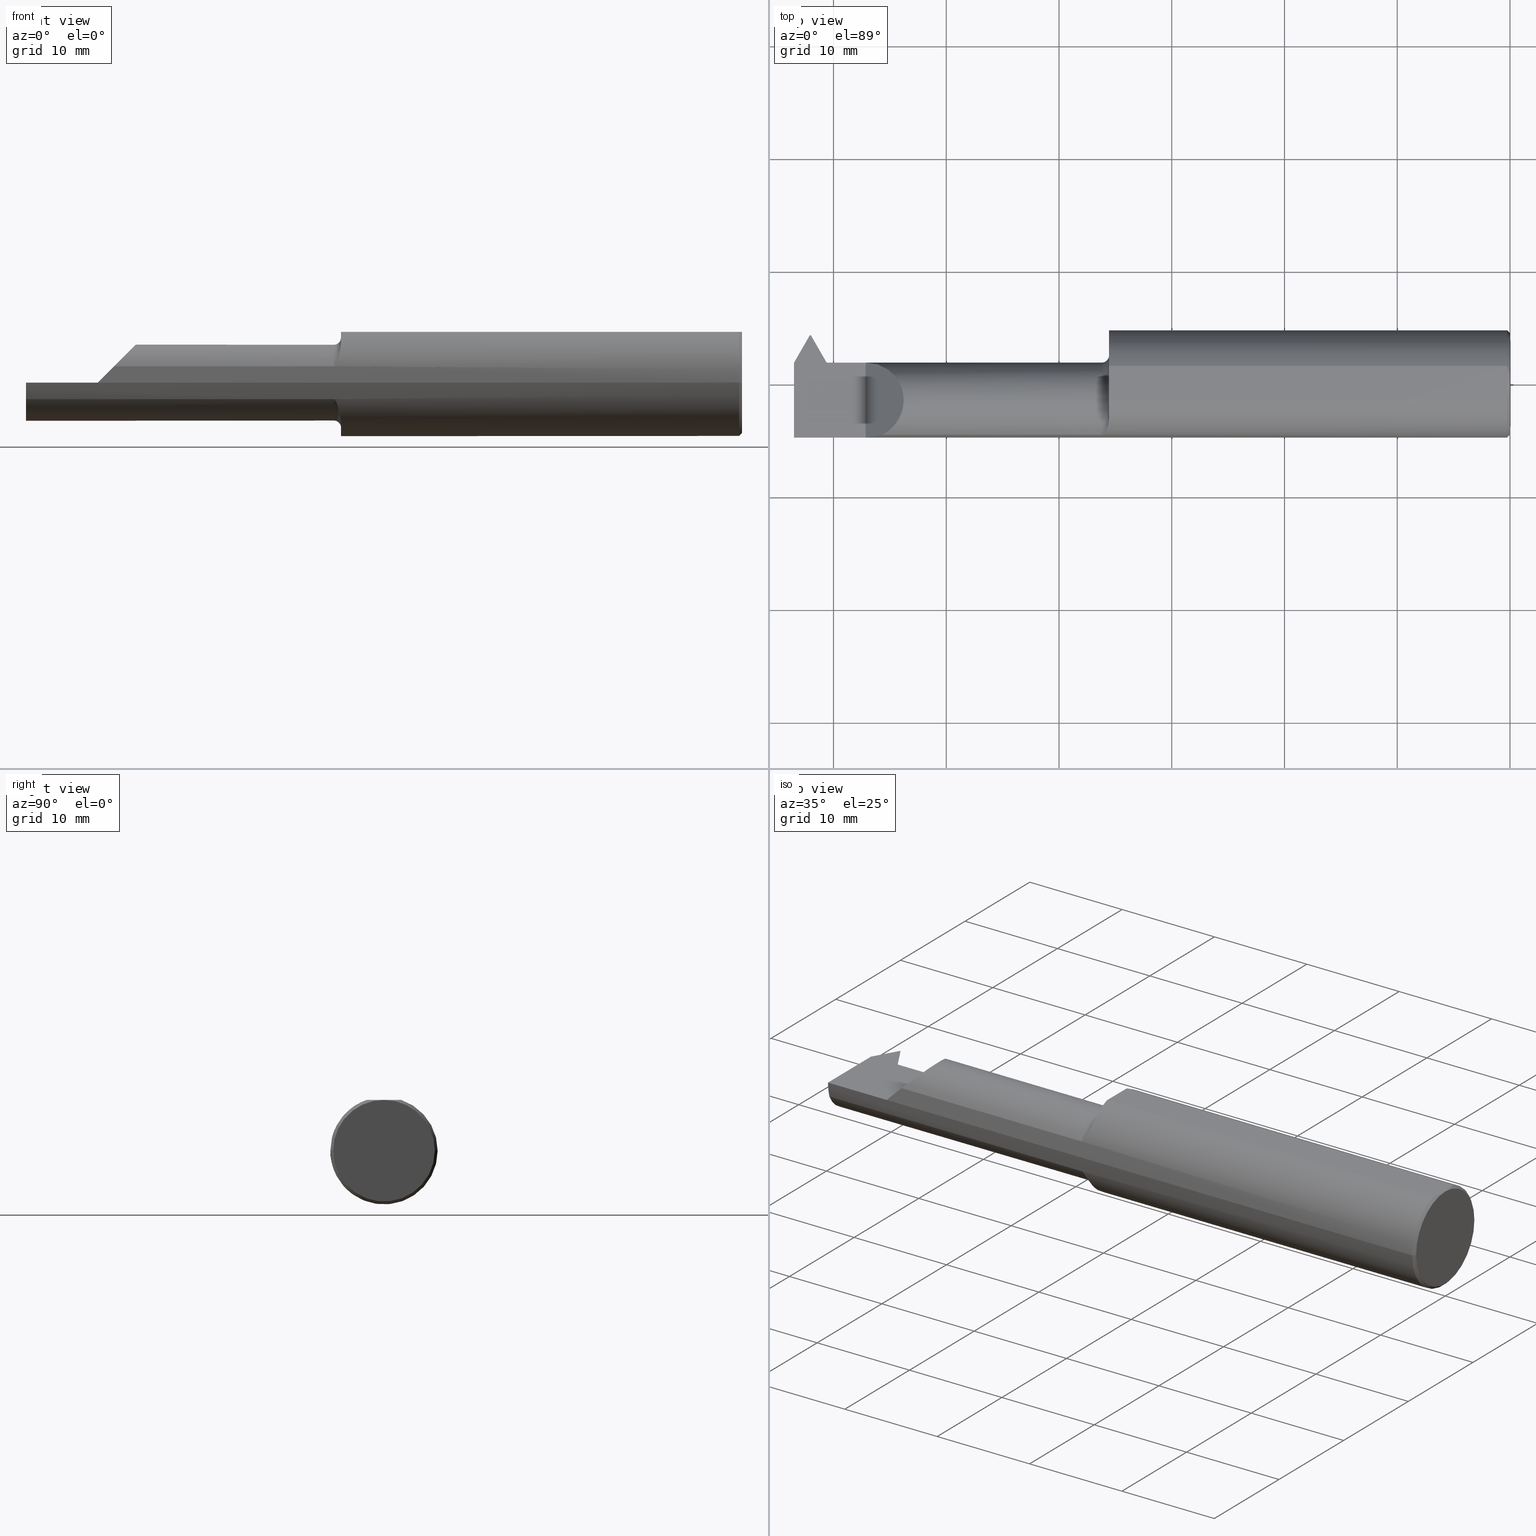
[diagram: canonical four-view strip — front | top / right | iso, engineering-drawing reading convention]
A machine part, canonical four-view strip (front | top / right | iso — engineering-drawing reading convention). The complete STEP part file that produces these views, byte-faithful:
ISO-10303-21;
HEADER;
FILE_DESCRIPTION (( 'STEP AP203' ),
    '1' );
FILE_NAME ('231894-LHTT3601000.STEP',
    '2025-01-28T18:39:22',
    ( '' ),
    ( '' ),
    'SwSTEP 2.0',
    'SolidWorks 2024',
    '' );
FILE_SCHEMA (( 'CONFIG_CONTROL_DESIGN' ));
ENDSEC;

DATA;
#1 = PERSON ( 'UNSPECIFIED', 'UNSPECIFIED', 'UNSPECIFIED', ('UNSPECIFIED'), ('UNSPECIFIED'), ('UNSPECIFIED') ) ;
#2 = ADVANCED_FACE ( 'NONE', ( #167 ), #285, .F. ) ;
#3 = DIRECTION ( 'NONE',  ( 1.000000000000000000, 1.224646799147352961E-16, -0.000000000000000000 ) ) ;
#4 = DIRECTION ( 'NONE',  ( -0.02328694095508644646, -0.3419273951315134896, -0.9394377972167885504 ) ) ;
#5 = ORIENTED_EDGE ( 'NONE', *, *, #643, .F. ) ;
#6 = APPLICATION_CONTEXT ( 'configuration controlled 3d designs of mechanical parts and assemblies' ) ;
#7 = COORDINATED_UNIVERSAL_TIME_OFFSET ( 8, 0, .BEHIND. ) ;
#8 = DIRECTION ( 'NONE',  ( 0.000000000000000000, 1.000000000000000000, 0.000000000000000000 ) ) ;
#9 = AXIS2_PLACEMENT_3D ( 'NONE', #206, #792, #816 ) ;
#10 = COORDINATED_UNIVERSAL_TIME_OFFSET ( 8, 0, .BEHIND. ) ;
#11 = ORIENTED_EDGE ( 'NONE', *, *, #860, .T. ) ;
#12 = VECTOR ( 'NONE', #333, 39.37007874015748143 ) ;
#13 = VECTOR ( 'NONE', #577, 39.37007874015748143 ) ;
#14 = DIRECTION ( 'NONE',  ( -1.224646799147352961E-16, 1.000000000000000000, 0.000000000000000000 ) ) ;
#15 = CALENDAR_DATE ( 2025, 28, 1 ) ;
#16 = EDGE_CURVE ( 'NONE', #790, #272, #692, .T. ) ;
#17 = PERSON_AND_ORGANIZATION_ROLE ( 'creator' ) ;
#18 = ORIENTED_EDGE ( 'NONE', *, *, #274, .F. ) ;
#19 = CARTESIAN_POINT ( 'NONE',  ( 1.147187889101280084E-17, 3.673940397442058882E-16, 0.000000000000000000 ) ) ;
#20 = APPROVAL_DATE_TIME ( #267, #750 ) ;
#21 = DATE_AND_TIME ( #745, #615 ) ;
#22 = EDGE_CURVE ( 'NONE', #112, #79, #493, .T. ) ;
#23 = FACE_OUTER_BOUND ( 'NONE', #411, .T. ) ;
#24 = ORIENTED_EDGE ( 'NONE', *, *, #104, .F. ) ;
#25 = CARTESIAN_POINT ( 'NONE',  ( 5.171903141325568845E-16, -0.01026980879711894036, 0.1773500000000000909 ) ) ;
#26 = EDGE_LOOP ( 'NONE', ( #488, #159, #498, #688 ) ) ;
#27 =( BOUNDED_CURVE ( )  B_SPLINE_CURVE ( 3, ( #171, #126, #443, #251 ),
 .UNSPECIFIED., .F., .F. ) 
 B_SPLINE_CURVE_WITH_KNOTS ( ( 4, 4 ),
 ( 1.570796326794896780, 1.972222054753628662 ),
 .UNSPECIFIED. ) 
 CURVE ( )  GEOMETRIC_REPRESENTATION_ITEM ( )  RATIONAL_B_SPLINE_CURVE ( ( 1.000000000000000000, 0.9866164697472173950, 0.9866164697472173950, 1.000000000000000000 ) ) 
 REPRESENTATION_ITEM ( '' )  );
#28 = CIRCLE ( 'NONE', #667, 0.1330000000000000349 ) ;
#29 = ADVANCED_FACE ( 'NONE', ( #626 ), #687, .T. ) ;
#30 = SHAPE_DEFINITION_REPRESENTATION ( #686, #797 ) ;
#31 = CARTESIAN_POINT ( 'NONE',  ( -2.300000000000000266, 0.1706499999999998851, 8.875653457662611807E-19 ) ) ;
#32 = FACE_OUTER_BOUND ( 'NONE', #701, .T. ) ;
#33 = EDGE_CURVE ( 'NONE', #168, #813, #551, .T. ) ;
#34 = CARTESIAN_POINT ( 'NONE',  ( -0.004318418993202907154, -0.04060972747957771606, 0.1773500000000000909 ) ) ;
#35 = CARTESIAN_POINT ( 'NONE',  ( -2.500000000000000000, -0.1873499999999998777, 0.000000000000000000 ) ) ;
#36 = COORDINATED_UNIVERSAL_TIME_OFFSET ( 8, 0, .BEHIND. ) ;
#37 = DIRECTION ( 'NONE',  ( -1.000000000000000000, -1.224646799147319927E-16, 0.000000000000000000 ) ) ;
#38 = ORIENTED_EDGE ( 'NONE', *, *, #803, .F. ) ;
#39 = ORIENTED_EDGE ( 'NONE', *, *, #803, .T. ) ;
#40 = PLANE ( 'NONE',  #737 ) ;
#41 = CIRCLE ( 'NONE', #152, 0.1873499999999999055 ) ;
#42 = CARTESIAN_POINT ( 'NONE',  ( -1.414343418362526750, -0.1730952584121028814, 0.07182162584506034120 ) ) ;
#43 = CARTESIAN_POINT ( 'NONE',  ( -2.442739408347421648, 0.1524514882866905841, -0.04999999999999974604 ) ) ;
#44 = VERTEX_POINT ( 'NONE', #839 ) ;
#45 = DIRECTION ( 'NONE',  ( -1.000000000000000000, -1.553500558300393421E-17, -0.000000000000000000 ) ) ;
#46 = AXIS2_PLACEMENT_3D ( 'NONE', #647, #305, #53 ) ;
#47 = CARTESIAN_POINT ( 'NONE',  ( -1.401810233260114558, -0.1445504080075222242, -0.1207082908324061121 ) ) ;
#48 = CARTESIAN_POINT ( 'NONE',  ( -0.009999999999999096417, 0.1873500000000002941, 0.000000000000000000 ) ) ;
#49 = CARTESIAN_POINT ( 'NONE',  ( -2.444500000000000117, 0.1706500000000001349, 0.000000000000000000 ) ) ;
#50 = VERTEX_POINT ( 'NONE', #483 ) ;
#51 = DIRECTION ( 'NONE',  ( 0.000000000000000000, -1.000000000000000000, 0.000000000000000000 ) ) ;
#52 = CARTESIAN_POINT ( 'NONE',  ( -1.766041125410050538, -1.019624319155451042, -0.05000000000001384587 ) ) ;
#53 = DIRECTION ( 'NONE',  ( 0.000000000000000000, -0.7071067811865430208, -0.7071067811865521247 ) ) ;
#54 = ORIENTED_EDGE ( 'NONE', *, *, #141, .T. ) ;
#55 = DIRECTION ( 'NONE',  ( -1.000000000000000000, 9.108622265535208572E-17, -0.000000000000000000 ) ) ;
#56 = ADVANCED_FACE ( 'NONE', ( #102 ), #98, .T. ) ;
#57 = AXIS2_PLACEMENT_3D ( 'NONE', #622, #89, #561 ) ;
#58 = VECTOR ( 'NONE', #67, 39.37007874015748143 ) ;
#59 = FACE_OUTER_BOUND ( 'NONE', #685, .T. ) ;
#60 = LINE ( 'NONE', #388, #490 ) ;
#61 = ORIENTED_EDGE ( 'NONE', *, *, #135, .F. ) ;
#62 = CARTESIAN_POINT ( 'NONE',  ( -2.500000000000000000, 0.07452118017992460930, 0.000000000000000000 ) ) ;
#63 = EDGE_CURVE ( 'NONE', #210, #624, #151, .T. ) ;
#64 = EDGE_CURVE ( 'NONE', #133, #624, #223, .T. ) ;
#65 = DIRECTION ( 'NONE',  ( -0.4999999999999891753, -0.8660254037844449249, -8.991635853121723481E-17 ) ) ;
#66 = EDGE_LOOP ( 'NONE', ( #833, #847, #753, #213, #681, #182, #587, #492, #320, #252 ) ) ;
#67 = DIRECTION ( 'NONE',  ( -1.000000000000000000, -1.224646799147352961E-16, 0.000000000000000000 ) ) ;
#68 = LINE ( 'NONE', #350, #811 ) ;
#69 = ORIENTED_EDGE ( 'NONE', *, *, #357, .T. ) ;
#70 = FACE_OUTER_BOUND ( 'NONE', #537, .T. ) ;
#71 = MECHANICAL_CONTEXT ( 'NONE', #828, 'mechanical' ) ;
#72 = ADVANCED_FACE ( 'NONE', ( #23 ), #829, .T. ) ;
#73 = VERTEX_POINT ( 'NONE', #158 ) ;
#74 = DIRECTION ( 'NONE',  ( 9.108622265535208572E-17, 1.000000000000000000, 1.608104540654733016E-16 ) ) ;
#75 = AXIS2_PLACEMENT_3D ( 'NONE', #265, #139, #415 ) ;
#76 = CARTESIAN_POINT ( 'NONE',  ( -2.442739408347422980, 0.06945148828669117647, -0.1329999999999999793 ) ) ;
#77 = LINE ( 'NONE', #347, #858 ) ;
#78 = LOCAL_TIME ( 10, 39, 22.00000000000000000, #535 ) ;
#79 = VERTEX_POINT ( 'NONE', #491 ) ;
#80 = CARTESIAN_POINT ( 'NONE',  ( -2.500000000000000000, -0.1873499999999998500, 0.000000000000000000 ) ) ;
#81 = DIRECTION ( 'NONE',  ( 0.7745966692414757437, 0.4472135954999608698, -0.4472135954999683638 ) ) ;
#82 = ORIENTED_EDGE ( 'NONE', *, *, #149, .F. ) ;
#83 = EDGE_CURVE ( 'NONE', #765, #268, #293, .T. ) ;
#84 = DIRECTION ( 'NONE',  ( -0.5000000000000124345, 0.000000000000000000, -0.8660254037844313801 ) ) ;
#85 = PERSON_AND_ORGANIZATION ( #1, #428 ) ;
#86 = ORIENTED_EDGE ( 'NONE', *, *, #849, .F. ) ;
#87 = EDGE_CURVE ( 'NONE', #122, #50, #354, .T. ) ;
#88 = AXIS2_PLACEMENT_3D ( 'NONE', #232, #570, #239 ) ;
#89 = DIRECTION ( 'NONE',  ( 1.000000000000000000, 1.224646799147352961E-16, -0.000000000000000000 ) ) ;
#90 = LINE ( 'NONE', #489, #823 ) ;
#91 = ORIENTED_EDGE ( 'NONE', *, *, #735, .F. ) ;
#92 = EDGE_CURVE ( 'NONE', #502, #122, #559, .T. ) ;
#93 = ORIENTED_EDGE ( 'NONE', *, *, #458, .F. ) ;
#94 = EDGE_LOOP ( 'NONE', ( #417, #494, #614, #246 ) ) ;
#95 = CC_DESIGN_PERSON_AND_ORGANIZATION_ASSIGNMENT ( #280, #284, ( #426 ) ) ;
#96 = ORIENTED_EDGE ( 'NONE', *, *, #548, .T. ) ;
#97 = TOROIDAL_SURFACE ( 'NONE', #514, 0.1580000000000003624, 0.02499999999999993894 ) ;
#98 = PLANE ( 'NONE',  #164 ) ;
#99 = VERTEX_POINT ( 'NONE', #652 ) ;
#100 = DIRECTION ( 'NONE',  ( 1.000000000000000000, 1.224646799147352961E-16, -0.000000000000000000 ) ) ;
#101 = CARTESIAN_POINT ( 'NONE',  ( -0.009999999999999073866, 0.06039039658753679596, 0.1773500000000000909 ) ) ;
#102 = FACE_OUTER_BOUND ( 'NONE', #874, .T. ) ;
#103 = CARTESIAN_POINT ( 'NONE',  ( -2.500000000000000000, 0.06039039658753648371, 0.1773500000000000909 ) ) ;
#104 = EDGE_CURVE ( 'NONE', #420, #718, #60, .T. ) ;
#105 = CARTESIAN_POINT ( 'NONE',  ( -1.399999999999979039, -0.1236042208122572206, 0.1411207813207381034 ) ) ;
#106 = LINE ( 'NONE', #376, #568 ) ;
#107 = ORIENTED_EDGE ( 'NONE', *, *, #87, .F. ) ;
#108 = CARTESIAN_POINT ( 'NONE',  ( -2.500000000000000000, 0.1873499999999999888, 0.000000000000000000 ) ) ;
#109 = APPROVAL_ROLE ( '' ) ;
#110 = DIRECTION ( 'NONE',  ( 0.8486396879976064733, -0.4899623523104046918, 0.1993679344171976064 ) ) ;
#111 = DIRECTION ( 'NONE',  ( 0.000000000000000000, 1.000000000000000000, 1.608104540654733016E-16 ) ) ;
#112 = VERTEX_POINT ( 'NONE', #518 ) ;
#113 = FACE_OUTER_BOUND ( 'NONE', #431, .T. ) ;
#114 = VECTOR ( 'NONE', #856, 39.37007874015748143 ) ;
#115 = DIRECTION ( 'NONE',  ( 0.5000000000000015543, -0.8660254037844377084, -1.041646057090106330E-14 ) ) ;
#116 = DIRECTION ( 'NONE',  ( -2.498191301712524670E-33, 1.608104540654733016E-16, -1.000000000000000000 ) ) ;
#117 = EDGE_CURVE ( 'NONE', #210, #507, #27, .T. ) ;
#118 = ORIENTED_EDGE ( 'NONE', *, *, #422, .F. ) ;
#119 = CYLINDRICAL_SURFACE ( 'NONE', #691, 0.1330000000000002292 ) ;
#120 = CARTESIAN_POINT ( 'NONE',  ( -1.423749915749442652, -0.1783697086546679744, -0.05730854678360597365 ) ) ;
#121 = CARTESIAN_POINT ( 'NONE',  ( -2.250000000000000000, -0.1873499999999998222, 0.000000000000000000 ) ) ;
#122 = VERTEX_POINT ( 'NONE', #181 ) ;
#123 = CARTESIAN_POINT ( 'NONE',  ( -2.192691453216395914, -0.1783697086546688626, 0.05730854678360348953 ) ) ;
#124 = EDGE_CURVE ( 'NONE', #524, #227, #580, .T. ) ;
#125 = CARTESIAN_POINT ( 'NONE',  ( -1.424999999999999600, -0.1783697086546689181, 0.05730854678360410015 ) ) ;
#126 = CARTESIAN_POINT ( 'NONE',  ( -2.377429102214748902, 0.07465000000000020230, -0.01791708402103020514 ) ) ;
#127 = VERTEX_POINT ( 'NONE', #43 ) ;
#128 = DIRECTION ( 'NONE',  ( 1.000000000000000000, -9.108622265535208572E-17, 0.000000000000000000 ) ) ;
#129 = MANIFOLD_SOLID_BREP ( 'Cut-Sweep1', #321 ) ;
#130 = CC_DESIGN_APPROVAL ( #750, ( #484 ) ) ;
#131 = ADVANCED_FACE ( 'NONE', ( #717 ), #522, .F. ) ;
#132 = PLANE ( 'NONE',  #709 ) ;
#133 = VERTEX_POINT ( 'NONE', #121 ) ;
#134 = DIRECTION ( 'NONE',  ( -1.253099476677463101E-16, 1.000000000000000000, 0.000000000000000000 ) ) ;
#135 = EDGE_CURVE ( 'NONE', #133, #718, #392, .T. ) ;
#136 = ORIENTED_EDGE ( 'NONE', *, *, #124, .T. ) ;
#137 = DIRECTION ( 'NONE',  ( 0.000000000000000000, 0.000000000000000000, -1.000000000000000000 ) ) ;
#138 = LINE ( 'NONE', #80, #777 ) ;
#139 = DIRECTION ( 'NONE',  ( 1.393821857617695935E-33, -8.972136187338138840E-17, 1.000000000000000000 ) ) ;
#140 = ORIENTED_EDGE ( 'NONE', *, *, #516, .F. ) ;
#141 = EDGE_CURVE ( 'NONE', #112, #424, #779, .T. ) ;
#142 = VECTOR ( 'NONE', #747, 39.37007874015748143 ) ;
#143 = B_SPLINE_CURVE_WITH_KNOTS ( 'NONE', 3,
 ( #579, #120, #641, #699, #324, #767, #636, #387, #564, #517, #510, #47, #855, #313 ),
 .UNSPECIFIED., .F., .F.,
 ( 4, 2, 2, 2, 2, 2, 4 ),
 ( 1.965724206439678457E-07, 9.384097494423624644E-05, 0.0001874853774678285443, 0.0003747741825150031382, 0.0007493517926093614875, 0.001498507012798072332, 0.002996817453175490767 ),
 .UNSPECIFIED. ) ;
#144 = LINE ( 'NONE', #330, #290 ) ;
#145 = CARTESIAN_POINT ( 'NONE',  ( -2.500000000000000000, -0.05835000000000015175, -0.1330000000000000349 ) ) ;
#146 = EDGE_LOOP ( 'NONE', ( #841, #18, #454, #821 ) ) ;
#147 = CYLINDRICAL_SURFACE ( 'NONE', #799, 0.1873499999999999055 ) ;
#148 = EDGE_LOOP ( 'NONE', ( #576, #557, #215, #54 ) ) ;
#149 = EDGE_CURVE ( 'NONE', #424, #168, #325, .T. ) ;
#150 = VECTOR ( 'NONE', #543, 39.37007874015748143 ) ;
#151 = LINE ( 'NONE', #294, #273 ) ;
#152 = AXIS2_PLACEMENT_3D ( 'NONE', #729, #654, #134 ) ;
#153 = DIRECTION ( 'NONE',  ( -0.7071067811865514585, 0.000000000000000000, -0.7071067811865435759 ) ) ;
#154 = EDGE_CURVE ( 'NONE', #309, #227, #106, .T. ) ;
#155 = PRODUCT ( '231894-LHTT3601000', '231894-LHTT3601000', '', ( #71 ) ) ;
#156 = DATE_AND_TIME ( #751, #560 ) ;
#157 = AXIS2_PLACEMENT_3D ( 'NONE', #851, #245, #511 ) ;
#158 = CARTESIAN_POINT ( 'NONE',  ( -2.441499999999999115, 0.1706500000000001904, 0.000000000000000000 ) ) ;
#159 = ORIENTED_EDGE ( 'NONE', *, *, #832, .T. ) ;
#160 = EDGE_CURVE ( 'NONE', #79, #44, #846, .T. ) ;
#161 = CARTESIAN_POINT ( 'NONE',  ( -0.006863038267947816837, -0.05065855487579175309, 0.1773500000000001187 ) ) ;
#162 = EDGE_LOOP ( 'NONE', ( #235, #549, #780, #857 ) ) ;
#163 = DIRECTION ( 'NONE',  ( 1.000000000000000000, -9.108622265535208572E-17, 0.000000000000000000 ) ) ;
#164 = AXIS2_PLACEMENT_3D ( 'NONE', #749, #358, #755 ) ;
#165 = EDGE_LOOP ( 'NONE', ( #800, #563, #266 ) ) ;
#166 = VECTOR ( 'NONE', #100, 39.37007874015748143 ) ;
#167 = FACE_OUTER_BOUND ( 'NONE', #759, .T. ) ;
#168 = VERTEX_POINT ( 'NONE', #185 ) ;
#169 = DIRECTION ( 'NONE',  ( 1.000000000000000000, -9.108622265535208572E-17, 0.000000000000000000 ) ) ;
#170 = DIRECTION ( 'NONE',  ( 0.9799247046208295897, -8.925763983057300384E-17, 0.1993679344171976342 ) ) ;
#171 = CARTESIAN_POINT ( 'NONE',  ( -2.381074374157795326, 0.07464999999999998026, 0.000000000000000000 ) ) ;
#172 = ORIENTED_EDGE ( 'NONE', *, *, #553, .F. ) ;
#173 = DIRECTION ( 'NONE',  ( -0.7071067811865343611, 0.7071067811865606734, 8.659560562355095561E-17 ) ) ;
#174 = FACE_OUTER_BOUND ( 'NONE', #756, .T. ) ;
#175 = DIRECTION ( 'NONE',  ( 1.000000000000000000, 1.224646799147352961E-16, -0.000000000000000000 ) ) ;
#176 = ORIENTED_EDGE ( 'NONE', *, *, #317, .F. ) ;
#177 = DIRECTION ( 'NONE',  ( 1.000000000000000000, 6.829619984160543070E-15, 0.000000000000000000 ) ) ;
#178 = ADVANCED_FACE ( 'NONE', ( #721 ), #331, .F. ) ;
#179 = CARTESIAN_POINT ( 'NONE',  ( -1.406810654710997532, -0.1605151270935945562, 0.09708342838367613192 ) ) ;
#180 = VECTOR ( 'NONE', #432, 39.37007874015748143 ) ;
#181 = CARTESIAN_POINT ( 'NONE',  ( -1.399999999999999911, 0.1873500000000001275, 0.000000000000000000 ) ) ;
#182 = ORIENTED_EDGE ( 'NONE', *, *, #629, .F. ) ;
#183 = DIRECTION ( 'NONE',  ( 0.000000000000000000, -0.7071067811865535679, -0.7071067811865415775 ) ) ;
#184 = CARTESIAN_POINT ( 'NONE',  ( 0.000000000000000000, 3.673940397442058882E-16, 0.000000000000000000 ) ) ;
#185 = CARTESIAN_POINT ( 'NONE',  ( -2.391947536149771292, -0.01852261497118605493, -0.1329999999999999793 ) ) ;
#186 = ADVANCED_FACE ( 'NONE', ( #319 ), #590, .F. ) ;
#187 = ORIENTED_EDGE ( 'NONE', *, *, #83, .T. ) ;
#188 = DIRECTION ( 'NONE',  ( -1.253099476677463101E-16, 1.000000000000000000, 0.000000000000000000 ) ) ;
#189 = CARTESIAN_POINT ( 'NONE',  ( -1.408844572613942470, -0.1652240583778486482, 0.08882027308812183441 ) ) ;
#190 = DIRECTION ( 'NONE',  ( 1.000000000000000000, -9.108622265535208572E-17, 0.000000000000000000 ) ) ;
#191 = ORIENTED_EDGE ( 'NONE', *, *, #629, .T. ) ;
#192 = CARTESIAN_POINT ( 'NONE',  ( -0.009999999999999073866, 3.661693929450587103E-16, 0.000000000000000000 ) ) ;
#193 = LENGTH_MEASURE_WITH_UNIT ( LENGTH_MEASURE( 0.02539999999999999897 ), #264 );
#194 = ORIENTED_EDGE ( 'NONE', *, *, #364, .T. ) ;
#195 = LINE ( 'NONE', #442, #466 ) ;
#196 = EDGE_CURVE ( 'NONE', #99, #227, #381, .T. ) ;
#197 = DIRECTION ( 'NONE',  ( -6.842104469694077398E-17, 0.3768974211598647428, 0.9262550048032363037 ) ) ;
#198 = DIRECTION ( 'NONE',  ( 1.000000000000000000, -9.108622265535208572E-17, 0.000000000000000000 ) ) ;
#199 = ORIENTED_EDGE ( 'NONE', *, *, #832, .F. ) ;
#200 = PLANE ( 'NONE',  #836 ) ;
#201 = B_SPLINE_CURVE_WITH_KNOTS ( 'NONE', 3,
 ( #244, #105, #778, #521, #787, #179, #189, #696, #42, #231, #238, #505, #446, #338, #739, #125 ),
 .UNSPECIFIED., .F., .F.,
 ( 4, 2, 2, 2, 2, 2, 2, 4 ),
 ( 0.0004765446698262938469, 0.001211022660611473043, 0.001945500651396652294, 0.002679978642181831544, 0.003047217637574418242, 0.003230837135270707688, 0.003322646884118846990, 0.003414456632966985424 ),
 .UNSPECIFIED. ) ;
#202 = DIRECTION ( 'NONE',  ( -1.224646799147352961E-16, 1.000000000000000000, 0.000000000000000000 ) ) ;
#203 = ORIENTED_EDGE ( 'NONE', *, *, #124, .F. ) ;
#204 = CARTESIAN_POINT ( 'NONE',  ( -0.009999999999999073866, 3.661693929450587103E-16, 0.000000000000000000 ) ) ;
#205 = AXIS2_PLACEMENT_3D ( 'NONE', #270, #275, #593 ) ;
#206 = CARTESIAN_POINT ( 'NONE',  ( -2.500000000000000000, -0.05835000000000006154, 0.000000000000000000 ) ) ;
#207 = CARTESIAN_POINT ( 'NONE',  ( -2.386074374157794775, 0.07464999999999998026, 0.000000000000000000 ) ) ;
#208 = AXIS2_PLACEMENT_3D ( 'NONE', #301, #110, #249 ) ;
#209 = VECTOR ( 'NONE', #183, 39.37007874015748143 ) ;
#210 = VERTEX_POINT ( 'NONE', #461 ) ;
#211 = PLANE ( 'NONE',  #221 ) ;
#212 = CC_DESIGN_PERSON_AND_ORGANIZATION_ASSIGNMENT ( #733, #414, ( #155 ) ) ;
#213 = ORIENTED_EDGE ( 'NONE', *, *, #329, .F. ) ;
#214 = CARTESIAN_POINT ( 'NONE',  ( 6.090379736355500313E-18, 0.06447738502883540446, -0.04999999999997970651 ) ) ;
#215 = ORIENTED_EDGE ( 'NONE', *, *, #369, .T. ) ;
#216 = ADVANCED_FACE ( 'NONE', ( #256 ), #506, .T. ) ;
#217 = PERSON_AND_ORGANIZATION_ROLE ( 'classification_officer' ) ;
#218 = CARTESIAN_POINT ( 'NONE',  ( -0.009999999999999073866, -0.06039039658753610901, 0.1773500000000000909 ) ) ;
#219 = LINE ( 'NONE', #363, #292 ) ;
#220 = VECTOR ( 'NONE', #351, 39.37007874015748143 ) ;
#221 = AXIS2_PLACEMENT_3D ( 'NONE', #740, #81, #84 ) ;
#222 = APPROVAL_PERSON_ORGANIZATION ( #844, #584, #109 ) ;
#223 = LINE ( 'NONE', #616, #760 ) ;
#224 = DIRECTION ( 'NONE',  ( -1.000000000000000000, 9.108622265535208572E-17, 0.000000000000000000 ) ) ;
#225 = VERTEX_POINT ( 'NONE', #48 ) ;
#226 = LINE ( 'NONE', #485, #180 ) ;
#227 = VERTEX_POINT ( 'NONE', #314 ) ;
#228 = ADVANCED_FACE ( 'NONE', ( #575 ), #533, .T. ) ;
#229 = VERTEX_POINT ( 'NONE', #602 ) ;
#230 = CARTESIAN_POINT ( 'NONE',  ( -2.192691453216395914, -0.1783697086546688626, 0.05730854678360348953 ) ) ;
#231 = CARTESIAN_POINT ( 'NONE',  ( -1.417163479082054867, -0.1755340703777918676, 0.06552011612893761383 ) ) ;
#232 = CARTESIAN_POINT ( 'NONE',  ( -1.757231382422083765, -1.014538011669857687, 0.000000000000000000 ) ) ;
#233 = CC_DESIGN_APPROVAL ( #764, ( #426 ) ) ;
#234 = ADVANCED_FACE ( 'NONE', ( #744 ), #147, .T. ) ;
#235 = ORIENTED_EDGE ( 'NONE', *, *, #33, .T. ) ;
#236 = CARTESIAN_POINT ( 'NONE',  ( -2.381074374157795326, -0.05835000000000015175, -0.1330000000000000349 ) ) ;
#237 = APPROVAL_PERSON_ORGANIZATION ( #808, #750, #604 ) ;
#238 = CARTESIAN_POINT ( 'NONE',  ( -1.418195961774019631, -0.1762973784583060366, 0.06343092843766175160 ) ) ;
#239 = DIRECTION ( 'NONE',  ( 0.5000000000000034417, -0.8660254037844365982, 0.000000000000000000 ) ) ;
#240 = ORIENTED_EDGE ( 'NONE', *, *, #819, .T. ) ;
#241 = CARTESIAN_POINT ( 'NONE',  ( -1.399999999999999911, -0.05835000000000014481, 0.000000000000000000 ) ) ;
#242 = ADVANCED_FACE ( 'NONE', ( #810 ), #211, .T. ) ;
#243 = APPROVAL_DATE_TIME ( #621, #584 ) ;
#244 = CARTESIAN_POINT ( 'NONE',  ( -1.399999999999999911, -0.1160303770345037788, 0.1470951192431537435 ) ) ;
#245 = DIRECTION ( 'NONE',  ( -1.000000000000000000, -1.224646799147319927E-16, 0.000000000000000000 ) ) ;
#246 = ORIENTED_EDGE ( 'NONE', *, *, #481, .F. ) ;
#247 = DIRECTION ( 'NONE',  ( -9.108622265535208572E-17, -1.000000000000000000, 0.000000000000000000 ) ) ;
#248 = EDGE_CURVE ( 'NONE', #665, #268, #344, .T. ) ;
#249 = DIRECTION ( 'NONE',  ( 0.4999999999999897304, 0.8660254037844445918, 0.000000000000000000 ) ) ;
#250 = CIRCLE ( 'NONE', #556, 0.1580000000000003624 ) ;
#251 = CARTESIAN_POINT ( 'NONE',  ( -2.370501519666968981, 0.06407714550917323337, -0.05196724008907808307 ) ) ;
#252 = ORIENTED_EDGE ( 'NONE', *, *, #296, .F. ) ;
#253 = LINE ( 'NONE', #303, #497 ) ;
#254 = B_SPLINE_CURVE_WITH_KNOTS ( 'NONE', 3,
 ( #391, #574, #651, #370, #630, #101 ),
 .UNSPECIFIED., .F., .F.,
 ( 4, 2, 4 ),
 ( 0.003500626357656855259, 0.004276870921898036533, 0.005053115486139217807 ),
 .UNSPECIFIED. ) ;
#255 = PLANE ( 'NONE',  #208 ) ;
#256 = FACE_OUTER_BOUND ( 'NONE', #165, .T. ) ;
#257 = ORIENTED_EDGE ( 'NONE', *, *, #160, .F. ) ;
#258 = DIRECTION ( 'NONE',  ( 1.000000000000000000, 1.224646799147352961E-16, -0.000000000000000000 ) ) ;
#259 = CARTESIAN_POINT ( 'NONE',  ( -1.907268617577931424, 1.101162049775513907, 0.000000000000000000 ) ) ;
#260 = DIRECTION ( 'NONE',  ( 1.000000000000000000, 1.224646799147352961E-16, -0.000000000000000000 ) ) ;
#261 = ADVANCED_FACE ( 'NONE', ( #865 ), #132, .T. ) ;
#262 = ORIENTED_EDGE ( 'NONE', *, *, #819, .F. ) ;
#263 = CARTESIAN_POINT ( 'NONE',  ( -2.500000000000000000, -0.2500000000000000000, 0.000000000000000000 ) ) ;
#264 =( LENGTH_UNIT ( ) NAMED_UNIT ( * ) SI_UNIT ( $, .METRE. ) );
#265 = CARTESIAN_POINT ( 'NONE',  ( -2.381074374157795326, -0.05835000000000018644, -0.1330000000000000349 ) ) ;
#266 = ORIENTED_EDGE ( 'NONE', *, *, #248, .T. ) ;
#267 = DATE_AND_TIME ( #15, #843 ) ;
#268 = VERTEX_POINT ( 'NONE', #670 ) ;
#269 = LINE ( 'NONE', #538, #761 ) ;
#270 = CARTESIAN_POINT ( 'NONE',  ( -5.098311318176956023E-16, 0.07465000000001625891, 0.000000000000000000 ) ) ;
#271 = FACE_OUTER_BOUND ( 'NONE', #723, .T. ) ;
#272 = VERTEX_POINT ( 'NONE', #207 ) ;
#273 = VECTOR ( 'NONE', #163, 39.37007874015748143 ) ;
#274 = EDGE_CURVE ( 'NONE', #420, #665, #668, .T. ) ;
#275 = DIRECTION ( 'NONE',  ( 6.692513345651035612E-15, -0.9799247046208295897, 0.1993679344171976342 ) ) ;
#276 = VECTOR ( 'NONE', #449, 39.37007874015748143 ) ;
#277 = ORIENTED_EDGE ( 'NONE', *, *, #369, .F. ) ;
#278 = CARTESIAN_POINT ( 'NONE',  ( -2.381074374157795326, -0.05835000000000015175, -0.1330000000000000349 ) ) ;
#279 = PERSON_AND_ORGANIZATION_ROLE ( 'creator' ) ;
#280 = PERSON_AND_ORGANIZATION ( #1, #428 ) ;
#281 = VERTEX_POINT ( 'NONE', #475 ) ;
#282 = PLANE ( 'NONE',  #738 ) ;
#283 = CALENDAR_DATE ( 2025, 28, 1 ) ;
#284 = PERSON_AND_ORGANIZATION_ROLE ( 'design_supplier' ) ;
#285 = PLANE ( 'NONE',  #463 ) ;
#286 = CC_DESIGN_PERSON_AND_ORGANIZATION_ASSIGNMENT ( #85, #17, ( #426 ) ) ;
#287 = ORIENTED_EDGE ( 'NONE', *, *, #827, .T. ) ;
#288 = DIRECTION ( 'NONE',  ( 0.000000000000000000, 1.000000000000000000, 8.972136187338138840E-17 ) ) ;
#289 = CARTESIAN_POINT ( 'NONE',  ( -1.399999999999999911, 1.959434878635765230E-16, 0.000000000000000000 ) ) ;
#290 = VECTOR ( 'NONE', #606, 39.37007874015748143 ) ;
#291 = ORIENTED_EDGE ( 'NONE', *, *, #196, .T. ) ;
#292 = VECTOR ( 'NONE', #288, 39.37007874015748143 ) ;
#293 = B_SPLINE_CURVE_WITH_KNOTS ( 'NONE', 3,
 ( #218, #161, #34, #555, #25, #562 ),
 .UNSPECIFIED., .F., .F.,
 ( 4, 2, 4 ),
 ( 0.001950265285394878591, 0.002725445821525866816, 0.003500626357656855259 ),
 .UNSPECIFIED. ) ;
#294 = CARTESIAN_POINT ( 'NONE',  ( -2.500000000000000000, 0.07465000000000018843, 0.000000000000000000 ) ) ;
#295 = ORIENTED_EDGE ( 'NONE', *, *, #548, .F. ) ;
#296 = EDGE_CURVE ( 'NONE', #507, #229, #594, .T. ) ;
#297 = VERTEX_POINT ( 'NONE', #477 ) ;
#298 = ORIENTED_EDGE ( 'NONE', *, *, #343, .F. ) ;
#299 = DIRECTION ( 'NONE',  ( -0.7745966692414897325, 0.4472135954999487684, -0.4472135954999563179 ) ) ;
#300 = ADVANCED_FACE ( 'NONE', ( #271 ), #544, .F. ) ;
#301 = CARTESIAN_POINT ( 'NONE',  ( -1.907268617577931424, 1.101162049775513907, 0.000000000000000000 ) ) ;
#302 = CARTESIAN_POINT ( 'NONE',  ( -2.371983482051148506, -0.05310137099505359004, -0.1330000000000000349 ) ) ;
#303 = CARTESIAN_POINT ( 'NONE',  ( -2.290050427009581391, -0.01637394714821325398, -0.4473969938213963049 ) ) ;
#304 = DIRECTION ( 'NONE',  ( 0.000000000000000000, -1.000000000000000000, 0.000000000000000000 ) ) ;
#305 = DIRECTION ( 'NONE',  ( 1.098490779351302333E-17, -0.7071067811865521247, 0.7071067811865430208 ) ) ;
#306 = CARTESIAN_POINT ( 'NONE',  ( -2.500000000000000000, 6.123233995736767268E-17, 0.000000000000000000 ) ) ;
#307 = AXIS2_PLACEMENT_3D ( 'NONE', #772, #175, #705 ) ;
#308 = APPROVAL_PERSON_ORGANIZATION ( #608, #764, #748 ) ;
#309 = VERTEX_POINT ( 'NONE', #145 ) ;
#310 = PRODUCT_RELATED_PRODUCT_CATEGORY ( 'detail', '', ( #155 ) ) ;
#311 = CARTESIAN_POINT ( 'NONE',  ( -1.399999999999999911, -0.1160303770351310548, -0.1470951192429077736 ) ) ;
#312 = DESIGN_CONTEXT ( 'detailed design', #6, 'design' ) ;
#313 = CARTESIAN_POINT ( 'NONE',  ( -1.399999999999999911, -0.1160303770351310548, -0.1470951192429077736 ) ) ;
#314 = CARTESIAN_POINT ( 'NONE',  ( -2.500000000000000000, -0.02882404976244683573, -0.1329999999999999793 ) ) ;
#315 = ORIENTED_EDGE ( 'NONE', *, *, #248, .F. ) ;
#316 = CARTESIAN_POINT ( 'NONE',  ( -1.399999999999999911, 1.959434878635765230E-16, 0.000000000000000000 ) ) ;
#317 = EDGE_CURVE ( 'NONE', #73, #127, #77, .T. ) ;
#318 = FACE_OUTER_BOUND ( 'NONE', #26, .T. ) ;
#319 = FACE_OUTER_BOUND ( 'NONE', #384, .T. ) ;
#320 = ORIENTED_EDGE ( 'NONE', *, *, #742, .F. ) ;
#321 = CLOSED_SHELL ( 'NONE', ( #228, #404, #672, #234, #56, #300, #131, #186, #840, #725, #29, #683, #382, #178, #216, #758, #72, #523, #529, #261, #2, #796, #430, #595, #789, #242 ) ) ;
#322 = CARTESIAN_POINT ( 'NONE',  ( -2.381947536149771061, -0.01852261497118627351, -0.1330000000000000626 ) ) ;
#323 = AXIS2_PLACEMENT_3D ( 'NONE', #838, #170, #456 ) ;
#324 = CARTESIAN_POINT ( 'NONE',  ( -1.420126530293609912, -0.1772957297413630118, -0.06055838166122463201 ) ) ;
#325 = LINE ( 'NONE', #452, #425 ) ;
#326 = ORIENTED_EDGE ( 'NONE', *, *, #22, .T. ) ;
#327 = CARTESIAN_POINT ( 'NONE',  ( -2.500000000000000000, 6.123233995736767268E-17, 0.000000000000000000 ) ) ;
#328 = CC_DESIGN_SECURITY_CLASSIFICATION ( #345, ( #426 ) ) ;
#329 = EDGE_CURVE ( 'NONE', #281, #638, #419, .T. ) ;
#330 = CARTESIAN_POINT ( 'NONE',  ( -2.500000000000000000, -0.06039039658753642126, 0.1773500000000000909 ) ) ;
#331 = PLANE ( 'NONE',  #383 ) ;
#332 = ORIENTED_EDGE ( 'NONE', *, *, #558, .F. ) ;
#333 = DIRECTION ( 'NONE',  ( 1.212746882279176379E-14, 0.7071067811865430208, 0.7071067811865520136 ) ) ;
#334 = DIRECTION ( 'NONE',  ( 0.000000000000000000, -1.000000000000000000, 0.000000000000000000 ) ) ;
#335 = DIRECTION ( 'NONE',  ( 1.000000000000000000, 1.224646799147352961E-16, -0.000000000000000000 ) ) ;
#336 = ORIENTED_EDGE ( 'NONE', *, *, #117, .T. ) ;
#337 = LINE ( 'NONE', #468, #542 ) ;
#338 = CARTESIAN_POINT ( 'NONE',  ( -1.422655856876659186, -0.1781552959227965804, 0.05797775639605805970 ) ) ;
#339 = DIRECTION ( 'NONE',  ( -1.224646799147352961E-16, 1.000000000000000000, 0.000000000000000000 ) ) ;
#340 = AXIS2_PLACEMENT_3D ( 'NONE', #805, #335, #202 ) ;
#341 = EDGE_LOOP ( 'NONE', ( #136, #852, #471, #11 ) ) ;
#342 = CARTESIAN_POINT ( 'NONE',  ( -2.381947536149771061, 1.001585846846491101, 0.8871084618176598990 ) ) ;
#343 = EDGE_CURVE ( 'NONE', #648, #527, #607, .T. ) ;
#344 = CIRCLE ( 'NONE', #826, 0.1773500000000004795 ) ;
#345 = SECURITY_CLASSIFICATION ( '', '', #547 ) ;
#346 = CARTESIAN_POINT ( 'NONE',  ( -2.500000000000000000, 6.123233995736767268E-17, 0.000000000000000000 ) ) ;
#347 = CARTESIAN_POINT ( 'NONE',  ( -2.441423267150904852, 0.1717766856931814967, 0.003095543500839076888 ) ) ;
#348 = VERTEX_POINT ( 'NONE', #49 ) ;
#349 = CC_DESIGN_PERSON_AND_ORGANIZATION_ASSIGNMENT ( #479, #279, ( #484 ) ) ;
#350 = CARTESIAN_POINT ( 'NONE',  ( -2.500000000000000000, 0.06393532237734537993, -0.02601557670413339601 ) ) ;
#351 = DIRECTION ( 'NONE',  ( -1.000000000000000000, 9.108622265535208572E-17, -0.000000000000000000 ) ) ;
#352 = ORIENTED_EDGE ( 'NONE', *, *, #770, .F. ) ;
#353 = LINE ( 'NONE', #214, #142 ) ;
#354 = CIRCLE ( 'NONE', #873, 0.1873499999999999055 ) ;
#355 = AXIS2_PLACEMENT_3D ( 'NONE', #192, #868, #724 ) ;
#356 = ORIENTED_EDGE ( 'NONE', *, *, #422, .T. ) ;
#357 = EDGE_CURVE ( 'NONE', #367, #44, #219, .T. ) ;
#358 = DIRECTION ( 'NONE',  ( -1.000000000000000000, -1.224646799147352961E-16, 0.000000000000000000 ) ) ;
#359 = VERTEX_POINT ( 'NONE', #831 ) ;
#360 = CARTESIAN_POINT ( 'NONE',  ( -2.381947536149771061, 0.07465000000000063252, 3.178167241088818001E-15 ) ) ;
#361 = ORIENTED_EDGE ( 'NONE', *, *, #92, .T. ) ;
#362 = ORIENTED_EDGE ( 'NONE', *, *, #135, .T. ) ;
#363 = CARTESIAN_POINT ( 'NONE',  ( -2.381074374157795326, -0.05835000000000018644, -0.1330000000000000349 ) ) ;
#364 = EDGE_CURVE ( 'NONE', #229, #44, #226, .T. ) ;
#365 = VECTOR ( 'NONE', #773, 39.37007874015748143 ) ;
#366 = DIRECTION ( 'NONE',  ( -9.108622265535208572E-17, -1.000000000000000000, 0.000000000000000000 ) ) ;
#367 = VERTEX_POINT ( 'NONE', #278 ) ;
#368 = DIRECTION ( 'NONE',  ( -1.000000000000000000, -1.224646799147319927E-16, 0.000000000000000000 ) ) ;
#369 = EDGE_CURVE ( 'NONE', #790, #112, #353, .T. ) ;
#370 = CARTESIAN_POINT ( 'NONE',  ( -0.004345633232307606099, 0.04072602595449463514, 0.1773500000000000909 ) ) ;
#371 = ORIENTED_EDGE ( 'NONE', *, *, #398, .T. ) ;
#372 = ORIENTED_EDGE ( 'NONE', *, *, #713, .F. ) ;
#373 = CARTESIAN_POINT ( 'NONE',  ( -1.399999999999999911, -0.06039039658753628248, 0.1773500000000000909 ) ) ;
#374 = EDGE_CURVE ( 'NONE', #268, #420, #450, .T. ) ;
#375 = CARTESIAN_POINT ( 'NONE',  ( -2.381074374157795326, -0.05835000000000004766, 0.000000000000000000 ) ) ;
#376 = CARTESIAN_POINT ( 'NONE',  ( -2.500000000000000000, -0.05835000000000018644, -0.1330000000000000349 ) ) ;
#377 = ORIENTED_EDGE ( 'NONE', *, *, #458, .T. ) ;
#378 = CARTESIAN_POINT ( 'NONE',  ( -2.444421640306047916, 0.1694994269776339546, -0.003161173398384092836 ) ) ;
#379 = VECTOR ( 'NONE', #734, 39.37007874015748143 ) ;
#380 = LINE ( 'NONE', #52, #581 ) ;
#381 = LINE ( 'NONE', #862, #453 ) ;
#382 = ADVANCED_FACE ( 'NONE', ( #32 ), #282, .F. ) ;
#383 = AXIS2_PLACEMENT_3D ( 'NONE', #788, #116, #111 ) ;
#384 = EDGE_LOOP ( 'NONE', ( #372, #176, #377, #631 ) ) ;
#385 = FACE_OUTER_BOUND ( 'NONE', #66, .T. ) ;
#386 = UNCERTAINTY_MEASURE_WITH_UNIT (LENGTH_MEASURE( 1.000000000000000082E-05 ), #674, 'distance_accuracy_value', 'NONE');
#387 = CARTESIAN_POINT ( 'NONE',  ( -1.414331470962521431, -0.1730809661842611924, -0.07185561948439896096 ) ) ;
#388 = CARTESIAN_POINT ( 'NONE',  ( 2.171911098287777663E-17, -0.1773500000000000909, 0.000000000000000000 ) ) ;
#389 = ORIENTED_EDGE ( 'NONE', *, *, #64, .F. ) ;
#390 = CARTESIAN_POINT ( 'NONE',  ( -1.424999999999999600, -0.05835000000000014481, 0.000000000000000000 ) ) ;
#391 = CARTESIAN_POINT ( 'NONE',  ( -4.969808731120575398E-33, 3.199103279729614531E-16, 0.1773500000000000909 ) ) ;
#392 = LINE ( 'NONE', #700, #114 ) ;
#393 = ORIENTED_EDGE ( 'NONE', *, *, #605, .T. ) ;
#394 = CIRCLE ( 'NONE', #9, 0.1330000000000000071 ) ;
#395 = AXIS2_PLACEMENT_3D ( 'NONE', #435, #224, #366 ) ;
#396 = CARTESIAN_POINT ( 'NONE',  ( -2.030319072763994814, -0.1008380660117469685, 0.2196809272360030763 ) ) ;
#397 = AXIS2_PLACEMENT_3D ( 'NONE', #342, #412, #658 ) ;
#398 = EDGE_CURVE ( 'NONE', #665, #225, #90, .T. ) ;
#399 = VECTOR ( 'NONE', #842, 39.37007874015748143 ) ;
#400 =( NAMED_UNIT ( * ) SI_UNIT ( $, .STERADIAN. ) SOLID_ANGLE_UNIT ( ) );
#401 = DIRECTION ( 'NONE',  ( -1.000000000000000000, 1.393821857617719541E-33, 1.393821857617695935E-33 ) ) ;
#402 = ORIENTED_EDGE ( 'NONE', *, *, #317, .T. ) ;
#403 = FACE_OUTER_BOUND ( 'NONE', #653, .T. ) ;
#404 = ADVANCED_FACE ( 'NONE', ( #503 ), #781, .T. ) ;
#405 = CARTESIAN_POINT ( 'NONE',  ( 0.000000000000000000, 0.000000000000000000, 0.000000000000000000 ) ) ;
#406 = CARTESIAN_POINT ( 'NONE',  ( -2.381074374157795326, 0.07464999999999996638, 0.000000000000000000 ) ) ;
#407 = ORIENTED_EDGE ( 'NONE', *, *, #22, .F. ) ;
#408 = FACE_OUTER_BOUND ( 'NONE', #746, .T. ) ;
#409 = APPLICATION_PROTOCOL_DEFINITION ( 'international standard', 'config_control_design', 1994, #828 ) ;
#410 = EDGE_CURVE ( 'NONE', #367, #309, #632, .T. ) ;
#411 = EDGE_LOOP ( 'NONE', ( #118, #609, #596, #107, #661 ) ) ;
#412 = DIRECTION ( 'NONE',  ( -1.000000000000000000, 0.000000000000000000, -0.000000000000000000 ) ) ;
#413 = CIRCLE ( 'NONE', #814, 0.1873499999999999610 ) ;
#414 = PERSON_AND_ORGANIZATION_ROLE ( 'design_owner' ) ;
#415 = DIRECTION ( 'NONE',  ( 0.000000000000000000, -1.000000000000000000, -8.972136187338138840E-17 ) ) ;
#416 = AXIS2_PLACEMENT_3D ( 'NONE', #859, #368, #455 ) ;
#417 = ORIENTED_EDGE ( 'NONE', *, *, #619, .F. ) ;
#418 = LINE ( 'NONE', #259, #150 ) ;
#419 = LINE ( 'NONE', #675, #220 ) ;
#420 = VERTEX_POINT ( 'NONE', #573 ) ;
#421 = ORIENTED_EDGE ( 'NONE', *, *, #374, .F. ) ;
#422 = EDGE_CURVE ( 'NONE', #706, #502, #250, .T. ) ;
#423 = CIRCLE ( 'NONE', #612, 0.1873499999999999055 ) ;
#424 = VERTEX_POINT ( 'NONE', #322 ) ;
#425 = VECTOR ( 'NONE', #401, 39.37007874015748143 ) ;
#426 = PRODUCT_DEFINITION_FORMATION_WITH_SPECIFIED_SOURCE ( 'ANY', '', #155, .NOT_KNOWN. ) ;
#427 = DIRECTION ( 'NONE',  ( 1.000000000000000000, -9.108622265535208572E-17, 0.000000000000000000 ) ) ;
#428 = ORGANIZATION ( 'UNSPECIFIED', 'UNSPECIFIED', '' ) ;
#429 = ORIENTED_EDGE ( 'NONE', *, *, #470, .F. ) ;
#430 = ADVANCED_FACE ( 'NONE', ( #499 ), #40, .T. ) ;
#431 = EDGE_LOOP ( 'NONE', ( #356, #91, #617, #38 ) ) ;
#432 = DIRECTION ( 'NONE',  ( -1.815967206466249270E-17, -0.1993679344171976064, -0.9799247046208294787 ) ) ;
#433 = AXIS2_PLACEMENT_3D ( 'NONE', #809, #655, #334 ) ;
#434 = VECTOR ( 'NONE', #697, 39.37007874015748854 ) ;
#435 = CARTESIAN_POINT ( 'NONE',  ( -1.399999999999999911, 0.1873500000000002941, 0.000000000000000000 ) ) ;
#436 = AXIS2_PLACEMENT_3D ( 'NONE', #316, #169, #441 ) ;
#437 = VERTEX_POINT ( 'NONE', #373 ) ;
#438 = CARTESIAN_POINT ( 'NONE',  ( -2.443260591652576696, 0.06945148828669117647, -0.1329999999999999793 ) ) ;
#439 = DIRECTION ( 'NONE',  ( 0.000000000000000000, -0.3420201433256632173, -0.9396926207859103153 ) ) ;
#440 = ORIENTED_EDGE ( 'NONE', *, *, #64, .T. ) ;
#441 = DIRECTION ( 'NONE',  ( 0.000000000000000000, -1.000000000000000000, -4.440892098500626162E-15 ) ) ;
#442 = CARTESIAN_POINT ( 'NONE',  ( -1.898458874589966872, 1.096075742289921218, -0.05000000000000219547 ) ) ;
#443 = CARTESIAN_POINT ( 'NONE',  ( -2.373857010182697014, 0.07107790796794771770, -0.03547447728800473543 ) ) ;
#444 = DIRECTION ( 'NONE',  ( -0.4999999999999955591, 0.000000000000000000, 0.8660254037844411501 ) ) ;
#445 = EDGE_CURVE ( 'NONE', #790, #168, #694, .T. ) ;
#446 = CARTESIAN_POINT ( 'NONE',  ( -1.420882408083194326, -0.1776276410483735024, 0.05957475000073453320 ) ) ;
#447 = CARTESIAN_POINT ( 'NONE',  ( -2.381074374157796214, 0.04759084417664793260, -0.1330000000000000071 ) ) ;
#448 = ORIENTED_EDGE ( 'NONE', *, *, #63, .F. ) ;
#449 = DIRECTION ( 'NONE',  ( 0.5000000000000034417, -0.8660254037844365982, 0.000000000000000000 ) ) ;
#450 = CIRCLE ( 'NONE', #707, 0.1773500000000004795 ) ;
#451 = DIRECTION ( 'NONE',  ( -1.000000000000000000, 9.108622265535208572E-17, -0.000000000000000000 ) ) ;
#452 = CARTESIAN_POINT ( 'NONE',  ( -2.381074374157795326, -0.01852261497118618677, -0.1330000000000000349 ) ) ;
#453 = VECTOR ( 'NONE', #642, 39.37007874015748143 ) ;
#454 = ORIENTED_EDGE ( 'NONE', *, *, #104, .T. ) ;
#455 = DIRECTION ( 'NONE',  ( 1.224646799147319927E-16, -1.000000000000000000, 0.000000000000000000 ) ) ;
#456 = DIRECTION ( 'NONE',  ( 0.1993679344171976064, 0.000000000000000000, -0.9799247046208294787 ) ) ;
#457 = CARTESIAN_POINT ( 'NONE',  ( -2.381947536149771061, 1.001585846846491101, 0.8871084618176598990 ) ) ;
#458 = EDGE_CURVE ( 'NONE', #73, #272, #769, .T. ) ;
#459 = ORIENTED_EDGE ( 'NONE', *, *, #534, .T. ) ;
#460 = CARTESIAN_POINT ( 'NONE',  ( -2.250000000000000000, 0.07465000000000018843, 0.000000000000000000 ) ) ;
#461 = CARTESIAN_POINT ( 'NONE',  ( -2.381074374157795326, 0.07464999999999998026, 0.000000000000000000 ) ) ;
#462 = ORIENTED_EDGE ( 'NONE', *, *, #872, .F. ) ;
#463 = AXIS2_PLACEMENT_3D ( 'NONE', #31, #496, #439 ) ;
#464 = LINE ( 'NONE', #875, #12 ) ;
#465 = CC_DESIGN_DATE_AND_TIME_ASSIGNMENT ( #156, #837, ( #345 ) ) ;
#466 = VECTOR ( 'NONE', #646, 39.37007874015748854 ) ;
#467 = ORIENTED_EDGE ( 'NONE', *, *, #343, .T. ) ;
#468 = CARTESIAN_POINT ( 'NONE',  ( -1.399999999999999911, 0.2123500000000000942, 0.1773500000000001187 ) ) ;
#469 =( GEOMETRIC_REPRESENTATION_CONTEXT ( 3 ) GLOBAL_UNCERTAINTY_ASSIGNED_CONTEXT ( ( #386 ) ) GLOBAL_UNIT_ASSIGNED_CONTEXT ( ( #674, #720, #400 ) ) REPRESENTATION_CONTEXT ( 'NONE', 'WORKASPACE' ) );
#470 = EDGE_CURVE ( 'NONE', #122, #225, #702, .T. ) ;
#471 = ORIENTED_EDGE ( 'NONE', *, *, #695, .T. ) ;
#472 = LINE ( 'NONE', #666, #762 ) ;
#473 = DATE_TIME_ROLE ( 'creation_date' ) ;
#474 = EDGE_CURVE ( 'NONE', #297, #348, #508, .T. ) ;
#475 = CARTESIAN_POINT ( 'NONE',  ( -1.424999999999999600, -0.1783697086546689181, 0.05730854678360410015 ) ) ;
#476 = ORIENTED_EDGE ( 'NONE', *, *, #357, .F. ) ;
#477 = CARTESIAN_POINT ( 'NONE',  ( -2.443260591652577585, 0.1524514882866899734, -0.05000000000000015543 ) ) ;
#478 = ORIENTED_EDGE ( 'NONE', *, *, #680, .F. ) ;
#479 = PERSON_AND_ORGANIZATION ( #1, #428 ) ;
#480 = ORIENTED_EDGE ( 'NONE', *, *, #578, .T. ) ;
#481 = EDGE_CURVE ( 'NONE', #127, #297, #708, .T. ) ;
#482 = APPROVAL_STATUS ( 'not_yet_approved' ) ;
#483 = CARTESIAN_POINT ( 'NONE',  ( -1.399999999999999911, 0.06039039658753678902, 0.1773500000000000909 ) ) ;
#484 = PRODUCT_DEFINITION ( 'UNKNOWN', '', #426, #312 ) ;
#485 = CARTESIAN_POINT ( 'NONE',  ( -2.381074374157795326, 0.07464999999999999414, -6.905695551357038228E-18 ) ) ;
#486 = COORDINATED_UNIVERSAL_TIME_OFFSET ( 8, 0, .BEHIND. ) ;
#487 = DIRECTION ( 'NONE',  ( 0.1143501000964208258, 0.1980601832175902244, 0.9734969021171835379 ) ) ;
#488 = ORIENTED_EDGE ( 'NONE', *, *, #695, .F. ) ;
#489 = CARTESIAN_POINT ( 'NONE',  ( -2.171911098287777663E-17, 0.1773500000000008403, 2.171911098287836519E-17 ) ) ;
#490 = VECTOR ( 'NONE', #637, 39.37007874015748143 ) ;
#491 = CARTESIAN_POINT ( 'NONE',  ( -2.381947536149771061, 0.04759084417664790484, -0.1330000000000000349 ) ) ;
#492 = ORIENTED_EDGE ( 'NONE', *, *, #410, .F. ) ;
#493 = LINE ( 'NONE', #360, #812 ) ;
#494 = ORIENTED_EDGE ( 'NONE', *, *, #578, .F. ) ;
#495 = AXIS2_PLACEMENT_3D ( 'NONE', #327, #258, #525 ) ;
#496 = DIRECTION ( 'NONE',  ( 1.459813011021671533E-17, -0.9396926207859104263, 0.3420201433256632728 ) ) ;
#497 = VECTOR ( 'NONE', #639, 39.37007874015748854 ) ;
#498 = ORIENTED_EDGE ( 'NONE', *, *, #849, .T. ) ;
#499 = FACE_OUTER_BOUND ( 'NONE', #341, .T. ) ;
#500 = CARTESIAN_POINT ( 'NONE',  ( -0.009999999999999049580, -0.1873499999999995447, 2.294375778202565098E-17 ) ) ;
#501 = DIRECTION ( 'NONE',  ( 0.000000000000000000, 1.000000000000000000, 8.972136187338138840E-17 ) ) ;
#502 = VERTEX_POINT ( 'NONE', #311 ) ;
#503 = FACE_OUTER_BOUND ( 'NONE', #146, .T. ) ;
#504 = EDGE_CURVE ( 'NONE', #507, #210, #253, .T. ) ;
#505 = CARTESIAN_POINT ( 'NONE',  ( -1.420156893127617614, -0.1773094052629642092, 0.06051821018283436160 ) ) ;
#506 = PLANE ( 'NONE',  #307 ) ;
#507 = VERTEX_POINT ( 'NONE', #766 ) ;
#508 = LINE ( 'NONE', #378, #399 ) ;
#509 = CALENDAR_DATE ( 2025, 28, 1 ) ;
#510 = CARTESIAN_POINT ( 'NONE',  ( -1.406840882823496841, -0.1605979928433031168, -0.09695168669191761568 ) ) ;
#511 = DIRECTION ( 'NONE',  ( 1.224646799147319927E-16, -1.000000000000000000, 0.000000000000000000 ) ) ;
#512 = CONICAL_SURFACE ( 'NONE', #554, 0.1773500000000004795, 0.7853981633974670418 ) ;
#513 = ORIENTED_EDGE ( 'NONE', *, *, #474, .T. ) ;
#514 = AXIS2_PLACEMENT_3D ( 'NONE', #390, #55, #247 ) ;
#515 = CARTESIAN_POINT ( 'NONE',  ( -2.391947536149770848, 1.001585846846491101, 0.8871084618176598990 ) ) ;
#516 = EDGE_CURVE ( 'NONE', #272, #210, #520, .T. ) ;
#517 = CARTESIAN_POINT ( 'NONE',  ( -1.408867519642198696, -0.1652587220708467697, -0.08874743406640565879 ) ) ;
#518 = CARTESIAN_POINT ( 'NONE',  ( -2.381947536149771061, 0.06447738502881514289, -0.05000000000000014849 ) ) ;
#519 = ORIENTED_EDGE ( 'NONE', *, *, #677, .F. ) ;
#520 = LINE ( 'NONE', #775, #854 ) ;
#521 = CARTESIAN_POINT ( 'NONE',  ( -1.402207105173743695, -0.1438831799117039900, 0.1203810775392108040 ) ) ;
#522 = PLANE ( 'NONE',  #46 ) ;
#523 = ADVANCED_FACE ( 'NONE', ( #113 ), #97, .F. ) ;
#524 = VERTEX_POINT ( 'NONE', #438 ) ;
#525 = DIRECTION ( 'NONE',  ( 0.000000000000000000, 1.000000000000000000, 0.000000000000000000 ) ) ;
#526 = FACE_OUTER_BOUND ( 'NONE', #620, .T. ) ;
#527 = VERTEX_POINT ( 'NONE', #35 ) ;
#528 = DIRECTION ( 'NONE',  ( 1.000000000000000000, -9.108622265535208572E-17, 0.000000000000000000 ) ) ;
#529 = ADVANCED_FACE ( 'NONE', ( #385 ), #119, .T. ) ;
#530 = DIRECTION ( 'NONE',  ( 9.108622265535208572E-17, 1.000000000000000000, 0.000000000000000000 ) ) ;
#531 = EDGE_LOOP ( 'NONE', ( #731, #644, #69 ) ) ;
#532 = LINE ( 'NONE', #588, #722 ) ;
#533 = CONICAL_SURFACE ( 'NONE', #157, 0.1773500000000004795, 0.7853981633974670418 ) ;
#534 = EDGE_CURVE ( 'NONE', #133, #638, #650, .T. ) ;
#535 = COORDINATED_UNIVERSAL_TIME_OFFSET ( 8, 0, .BEHIND. ) ;
#536 = DIRECTION ( 'NONE',  ( 1.218297997402280232E-14, -0.7071067811865430208, -0.7071067811865520136 ) ) ;
#537 = EDGE_LOOP ( 'NONE', ( #830, #362, #768, #262, #671, #39, #806 ) ) ;
#538 = CARTESIAN_POINT ( 'NONE',  ( -1.903037187078897574, -0.1783697086546686961, -0.05730854678360398913 ) ) ;
#539 = DIRECTION ( 'NONE',  ( 1.000000000000000000, 1.224646799147352961E-16, -0.000000000000000000 ) ) ;
#540 = DIRECTION ( 'NONE',  ( 0.000000000000000000, 1.000000000000000000, 0.000000000000000000 ) ) ;
#541 = ORIENTED_EDGE ( 'NONE', *, *, #680, .T. ) ;
#542 = VECTOR ( 'NONE', #74, 39.37007874015748143 ) ;
#543 = DIRECTION ( 'NONE',  ( 0.4999999999999897304, 0.8660254037844445918, 0.000000000000000000 ) ) ;
#544 = PLANE ( 'NONE',  #75 ) ;
#545 = EDGE_CURVE ( 'NONE', #437, #706, #815, .T. ) ;
#546 = ORIENTED_EDGE ( 'NONE', *, *, #822, .F. ) ;
#547 = SECURITY_CLASSIFICATION_LEVEL ( 'unclassified' ) ;
#548 = EDGE_CURVE ( 'NONE', #591, #50, #698, .T. ) ;
#549 = ORIENTED_EDGE ( 'NONE', *, *, #619, .T. ) ;
#550 = DIRECTION ( 'NONE',  ( 0.7071067811865435759, 0.000000000000000000, -0.7071067811865514585 ) ) ;
#551 = LINE ( 'NONE', #302, #434 ) ;
#552 = ORIENTED_EDGE ( 'NONE', *, *, #470, .T. ) ;
#553 = EDGE_CURVE ( 'NONE', #437, #50, #337, .T. ) ;
#554 = AXIS2_PLACEMENT_3D ( 'NONE', #184, #37, #569 ) ;
#555 = CARTESIAN_POINT ( 'NONE',  ( -0.0008974174807281084338, -0.02044204845470678697, 0.1773500000000000909 ) ) ;
#556 = AXIS2_PLACEMENT_3D ( 'NONE', #241, #848, #567 ) ;
#557 = ORIENTED_EDGE ( 'NONE', *, *, #445, .F. ) ;
#558 = EDGE_CURVE ( 'NONE', #624, #638, #741, .T. ) ;
#559 = CIRCLE ( 'NONE', #754, 0.1873499999999999055 ) ;
#560 = LOCAL_TIME ( 10, 39, 22.00000000000000000, #486 ) ;
#561 = DIRECTION ( 'NONE',  ( 0.000000000000000000, 1.000000000000000000, 0.000000000000000000 ) ) ;
#562 = CARTESIAN_POINT ( 'NONE',  ( -4.969808731120575398E-33, 3.199103279729614531E-16, 0.1773500000000000909 ) ) ;
#563 = ORIENTED_EDGE ( 'NONE', *, *, #274, .T. ) ;
#564 = CARTESIAN_POINT ( 'NONE',  ( -1.412851115778101851, -0.1712424833498245313, -0.07614241156970343039 ) ) ;
#565 = CARTESIAN_POINT ( 'NONE',  ( -2.402519807398028728, 0.04616567407543323981, -0.1400049348434579954 ) ) ;
#566 = ORIENTED_EDGE ( 'NONE', *, *, #481, .T. ) ;
#567 = DIRECTION ( 'NONE',  ( 0.000000000000000000, -1.000000000000000000, 0.000000000000000000 ) ) ;
#568 = VECTOR ( 'NONE', #501, 39.37007874015748143 ) ;
#569 = DIRECTION ( 'NONE',  ( 1.224646799147319927E-16, -1.000000000000000000, 0.000000000000000000 ) ) ;
#570 = DIRECTION ( 'NONE',  ( -0.8486396879975987018, -0.4899623523104181810, 0.1993679344171975232 ) ) ;
#571 = AXIS2_PLACEMENT_3D ( 'NONE', #405, #663, #659 ) ;
#572 = EDGE_LOOP ( 'NONE', ( #429, #763, #295, #541 ) ) ;
#573 = CARTESIAN_POINT ( 'NONE',  ( 3.319098987389115832E-17, -0.1773500000000000909, 0.000000000000000000 ) ) ;
#574 = CARTESIAN_POINT ( 'NONE',  ( 5.242517010058283000E-16, 0.01028390533945651962, 0.1773500000000001187 ) ) ;
#575 = FACE_OUTER_BOUND ( 'NONE', #794, .T. ) ;
#576 = ORIENTED_EDGE ( 'NONE', *, *, #149, .T. ) ;
#577 = DIRECTION ( 'NONE',  ( -1.000000000000000000, -1.553500558300393113E-17, -0.000000000000000000 ) ) ;
#578 = EDGE_CURVE ( 'NONE', #524, #813, #472, .T. ) ;
#579 = CARTESIAN_POINT ( 'NONE',  ( -1.424999999999999600, -0.1783697086546688904, -0.05730854678360418342 ) ) ;
#580 = LINE ( 'NONE', #712, #682 ) ;
#581 = VECTOR ( 'NONE', #115, 39.37007874015748854 ) ;
#582 = EDGE_LOOP ( 'NONE', ( #172, #240, #187, #657, #96 ) ) ;
#583 = CARTESIAN_POINT ( 'NONE',  ( -2.500000000000000000, 0.9912844120552302130, 0.8871084618176598990 ) ) ;
#584 = APPROVAL ( #703, 'UNSPECIFIED' ) ;
#585 = CARTESIAN_POINT ( 'NONE',  ( -2.391947536149770848, 0.06447738502881500411, -0.05000000000000007910 ) ) ;
#586 = DIRECTION ( 'NONE',  ( 1.000000000000000000, 6.829619984160543070E-15, 5.870685507021644256E-31 ) ) ;
#587 = ORIENTED_EDGE ( 'NONE', *, *, #872, .T. ) ;
#588 = CARTESIAN_POINT ( 'NONE',  ( -2.381947536149771061, -0.05835000000000018644, -0.1330000000000000349 ) ) ;
#589 = PLANE ( 'NONE',  #205 ) ;
#590 = PLANE ( 'NONE',  #88 ) ;
#591 = VERTEX_POINT ( 'NONE', #597 ) ;
#592 = CARTESIAN_POINT ( 'NONE',  ( -2.250000000000000000, 0.07465000000000018843, 0.000000000000000000 ) ) ;
#593 = DIRECTION ( 'NONE',  ( 0.000000000000000000, -0.1993679344171976064, -0.9799247046208294787 ) ) ;
#594 = LINE ( 'NONE', #869, #379 ) ;
#595 = ADVANCED_FACE ( 'NONE', ( #408 ), #600, .T. ) ;
#596 = ORIENTED_EDGE ( 'NONE', *, *, #553, .T. ) ;
#597 = CARTESIAN_POINT ( 'NONE',  ( -0.009999999999999073866, 0.06039039658753679596, 0.1773500000000000909 ) ) ;
#598 = LINE ( 'NONE', #804, #633 ) ;
#599 = ORIENTED_EDGE ( 'NONE', *, *, #296, .T. ) ;
#600 = PLANE ( 'NONE',  #397 ) ;
#601 = VECTOR ( 'NONE', #586, 39.37007874015748143 ) ;
#602 = CARTESIAN_POINT ( 'NONE',  ( -2.381074374157795326, 0.06407714550917456564, -0.05196724008907338543 ) ) ;
#603 = ORIENTED_EDGE ( 'NONE', *, *, #154, .F. ) ;
#604 = APPROVAL_ROLE ( '' ) ;
#605 = EDGE_CURVE ( 'NONE', #348, #73, #662, .T. ) ;
#606 = DIRECTION ( 'NONE',  ( 1.000000000000000000, 1.224646799147352961E-16, -0.000000000000000000 ) ) ;
#607 = LINE ( 'NONE', #306, #365 ) ;
#608 = PERSON_AND_ORGANIZATION ( #1, #428 ) ;
#609 = ORIENTED_EDGE ( 'NONE', *, *, #545, .F. ) ;
#610 = VECTOR ( 'NONE', #487, 39.37007874015748143 ) ;
#611 = CARTESIAN_POINT ( 'NONE',  ( -2.250000000000000000, -0.2500000000000000000, 0.000000000000000000 ) ) ;
#612 = AXIS2_PLACEMENT_3D ( 'NONE', #204, #786, #188 ) ;
#613 = CC_DESIGN_PERSON_AND_ORGANIZATION_ASSIGNMENT ( #820, #217, ( #345 ) ) ;
#614 = ORIENTED_EDGE ( 'NONE', *, *, #860, .F. ) ;
#615 = LOCAL_TIME ( 10, 39, 22.00000000000000000, #10 ) ;
#616 = CARTESIAN_POINT ( 'NONE',  ( -2.250000000000000000, -0.2500000000000000000, 0.000000000000000000 ) ) ;
#617 = ORIENTED_EDGE ( 'NONE', *, *, #866, .F. ) ;
#618 = DIRECTION ( 'NONE',  ( 0.000000000000000000, -0.1993679344171976064, -0.9799247046208294787 ) ) ;
#619 = EDGE_CURVE ( 'NONE', #813, #127, #464, .T. ) ;
#620 = EDGE_LOOP ( 'NONE', ( #407, #277, #693, #863, #870, #599, #194, #257 ) ) ;
#621 = DATE_AND_TIME ( #509, #710 ) ;
#622 = CARTESIAN_POINT ( 'NONE',  ( -2.500000000000000000, 6.123233995736767268E-17, 0.000000000000000000 ) ) ;
#623 = VECTOR ( 'NONE', #45, 39.37007874015748143 ) ;
#624 = VERTEX_POINT ( 'NONE', #592 ) ;
#625 = DIRECTION ( 'NONE',  ( 1.000000000000000000, 1.224646799147352961E-16, -0.000000000000000000 ) ) ;
#626 = FACE_OUTER_BOUND ( 'NONE', #572, .T. ) ;
#627 = ORIENTED_EDGE ( 'NONE', *, *, #33, .F. ) ;
#628 = CARTESIAN_POINT ( 'NONE',  ( -2.230507368514858868, -0.1873499999999997390, 0.01949263148514107299 ) ) ;
#629 = EDGE_CURVE ( 'NONE', #359, #825, #269, .T. ) ;
#630 = CARTESIAN_POINT ( 'NONE',  ( -0.006852151730285416242, 0.05062478141268286075, 0.1773500000000000909 ) ) ;
#631 = ORIENTED_EDGE ( 'NONE', *, *, #16, .F. ) ;
#632 = LINE ( 'NONE', #236, #623 ) ;
#633 = VECTOR ( 'NONE', #536, 39.37007874015748143 ) ;
#634 = EDGE_CURVE ( 'NONE', #225, #718, #423, .T. ) ;
#635 = CIRCLE ( 'NONE', #355, 0.1873499999999999055 ) ;
#636 = CARTESIAN_POINT ( 'NONE',  ( -1.417141984682263267, -0.1755174329696174429, -0.06556455082929178724 ) ) ;
#637 = DIRECTION ( 'NONE',  ( -0.7071067811865341390, -0.7071067811865608954, 0.000000000000000000 ) ) ;
#638 = VERTEX_POINT ( 'NONE', #123 ) ;
#639 = DIRECTION ( 'NONE',  ( -0.1955200734030768384, 0.1955200734030755338, 0.9610118635026893008 ) ) ;
#640 = VECTOR ( 'NONE', #784, 39.37007874015748143 ) ;
#641 = CARTESIAN_POINT ( 'NONE',  ( -1.422632702519553982, -0.1781504652642074416, -0.05799271583144741116 ) ) ;
#642 = DIRECTION ( 'NONE',  ( 0.000000000000000000, -0.7071067811865535679, -0.7071067811865415775 ) ) ;
#643 = EDGE_CURVE ( 'NONE', #718, #765, #41, .T. ) ;
#644 = ORIENTED_EDGE ( 'NONE', *, *, #742, .T. ) ;
#645 = DIRECTION ( 'NONE',  ( -1.000000000000000000, 9.108622265535208572E-17, -0.000000000000000000 ) ) ;
#646 = DIRECTION ( 'NONE',  ( 0.4999999999999900080, 0.8660254037844443697, -1.714965957473355707E-15 ) ) ;
#647 = CARTESIAN_POINT ( 'NONE',  ( -2.300000000000000266, 0.1524514882866901122, -0.05000000000000000278 ) ) ;
#648 = VERTEX_POINT ( 'NONE', #62 ) ;
#649 = CARTESIAN_POINT ( 'NONE',  ( -2.300000000000000266, 0.1524514882866901122, -0.05000000000000000278 ) ) ;
#650 =( BOUNDED_CURVE ( )  B_SPLINE_CURVE ( 3, ( #853, #628, #835, #230 ),
 .UNSPECIFIED., .F., .F. ) 
 B_SPLINE_CURVE_WITH_KNOTS ( ( 4, 4 ),
 ( 4.712388980384689674, 5.023262387692872366 ),
 .UNSPECIFIED. ) 
 CURVE ( )  GEOMETRIC_REPRESENTATION_ITEM ( )  RATIONAL_B_SPLINE_CURVE ( ( 1.000000000000000000, 0.9919626788073500068, 0.9919626788073500068, 1.000000000000000000 ) ) 
 REPRESENTATION_ITEM ( '' )  );
#651 = CARTESIAN_POINT ( 'NONE',  ( -0.0009167640511158918265, 0.02059964124962103751, 0.1773500000000000909 ) ) ;
#652 = CARTESIAN_POINT ( 'NONE',  ( -2.500000000000000000, 0.05417595023755439332, -0.04999999999999989175 ) ) ;
#653 = EDGE_LOOP ( 'NONE', ( #817, #86, #467, #834, #440, #448, #140, #93 ) ) ;
#654 = DIRECTION ( 'NONE',  ( -1.000000000000000000, -1.224646799147319927E-16, 0.000000000000000000 ) ) ;
#655 = DIRECTION ( 'NONE',  ( -1.000000000000000000, 9.108622265535208572E-17, -0.000000000000000000 ) ) ;
#656 = DIRECTION ( 'NONE',  ( 0.000000000000000000, -1.000000000000000000, 0.000000000000000000 ) ) ;
#657 = ORIENTED_EDGE ( 'NONE', *, *, #770, .T. ) ;
#658 = DIRECTION ( 'NONE',  ( -0.000000000000000000, 0.000000000000000000, 1.000000000000000000 ) ) ;
#659 = DIRECTION ( 'NONE',  ( 1.000000000000000000, 0.000000000000000000, 0.000000000000000000 ) ) ;
#660 = CARTESIAN_POINT ( 'NONE',  ( -2.500000000000000000, 6.123233995736767268E-17, 0.000000000000000000 ) ) ;
#661 = ORIENTED_EDGE ( 'NONE', *, *, #92, .F. ) ;
#662 = LINE ( 'NONE', #719, #793 ) ;
#663 = DIRECTION ( 'NONE',  ( 0.000000000000000000, 0.000000000000000000, 1.000000000000000000 ) ) ;
#664 = DIMENSIONAL_EXPONENTS ( 1.000000000000000000, 0.000000000000000000, 0.000000000000000000, 0.000000000000000000, 0.000000000000000000, 0.000000000000000000, 0.000000000000000000 ) ;
#665 = VERTEX_POINT ( 'NONE', #864 ) ;
#666 = CARTESIAN_POINT ( 'NONE',  ( -2.381074374157795326, 0.06945148828669117647, -0.1330000000000000071 ) ) ;
#667 = AXIS2_PLACEMENT_3D ( 'NONE', #375, #451, #304 ) ;
#668 = CIRCLE ( 'NONE', #340, 0.1773500000000004795 ) ;
#669 = APPLICATION_PROTOCOL_DEFINITION ( 'international standard', 'config_control_design', 1994, #6 ) ;
#670 = CARTESIAN_POINT ( 'NONE',  ( -4.969808731120575398E-33, 3.199103279729614531E-16, 0.1773500000000000909 ) ) ;
#671 = ORIENTED_EDGE ( 'NONE', *, *, #545, .T. ) ;
#672 = ADVANCED_FACE ( 'NONE', ( #70 ), #871, .T. ) ;
#673 = APPROVAL_STATUS ( 'not_yet_approved' ) ;
#674 =( CONVERSION_BASED_UNIT ( 'INCH', #193 ) LENGTH_UNIT ( ) NAMED_UNIT ( #664 ) );
#675 = CARTESIAN_POINT ( 'NONE',  ( -1.903037187078897574, -0.1783697086546686961, 0.05730854678360398913 ) ) ;
#676 = ORIENTED_EDGE ( 'NONE', *, *, #160, .T. ) ;
#677 = EDGE_CURVE ( 'NONE', #79, #424, #532, .T. ) ;
#678 = APPROVAL_DATE_TIME ( #21, #764 ) ;
#679 = ORIENTED_EDGE ( 'NONE', *, *, #504, .T. ) ;
#680 = EDGE_CURVE ( 'NONE', #591, #225, #635, .T. ) ;
#681 = ORIENTED_EDGE ( 'NONE', *, *, #866, .T. ) ;
#682 = VECTOR ( 'NONE', #65, 39.37007874015747433 ) ;
#683 = ADVANCED_FACE ( 'NONE', ( #403 ), #200, .F. ) ;
#684 = DIRECTION ( 'NONE',  ( 0.000000000000000000, -1.000000000000000000, 0.000000000000000000 ) ) ;
#685 = EDGE_LOOP ( 'NONE', ( #24, #421, #818, #5 ) ) ;
#686 = PRODUCT_DEFINITION_SHAPE ( 'NONE', 'NONE',  #484 ) ;
#687 = CYLINDRICAL_SURFACE ( 'NONE', #57, 0.1873499999999999055 ) ;
#688 = ORIENTED_EDGE ( 'NONE', *, *, #474, .F. ) ;
#689 = CIRCLE ( 'NONE', #433, 0.1330000000000004234 ) ;
#690 = AXIS2_PLACEMENT_3D ( 'NONE', #711, #771, #845 ) ;
#691 = AXIS2_PLACEMENT_3D ( 'NONE', #782, #645, #51 ) ;
#692 = LINE ( 'NONE', #565, #610 ) ;
#693 = ORIENTED_EDGE ( 'NONE', *, *, #16, .T. ) ;
#694 = LINE ( 'NONE', #515, #209 ) ;
#695 = EDGE_CURVE ( 'NONE', #99, #297, #195, .T. ) ;
#696 = CARTESIAN_POINT ( 'NONE',  ( -1.412861924135735858, -0.1712588160411454563, 0.07610809679501795433 ) ) ;
#697 = DIRECTION ( 'NONE',  ( -0.5000000000000059952, 0.8660254037844350439, 8.991635853121663083E-17 ) ) ;
#698 = LINE ( 'NONE', #103, #58 ) ;
#699 = CARTESIAN_POINT ( 'NONE',  ( -1.420855552425396073, -0.1776175334603387890, -0.05960499283471152460 ) ) ;
#700 = CARTESIAN_POINT ( 'NONE',  ( -2.500000000000000000, -0.1873499999999998500, 2.294375778202565098E-17 ) ) ;
#701 = EDGE_LOOP ( 'NONE', ( #332, #389, #459 ) ) ;
#702 = LINE ( 'NONE', #108, #166 ) ;
#703 = APPROVAL_STATUS ( 'not_yet_approved' ) ;
#704 = FACE_OUTER_BOUND ( 'NONE', #148, .T. ) ;
#705 = DIRECTION ( 'NONE',  ( -1.224646799147352961E-16, 1.000000000000000000, 0.000000000000000000 ) ) ;
#706 = VERTEX_POINT ( 'NONE', #716 ) ;
#707 = AXIS2_PLACEMENT_3D ( 'NONE', #19, #625, #14 ) ;
#708 = LINE ( 'NONE', #649, #13 ) ;
#709 = AXIS2_PLACEMENT_3D ( 'NONE', #406, #198, #530 ) ;
#710 = LOCAL_TIME ( 10, 39, 22.00000000000000000, #36 ) ;
#711 = CARTESIAN_POINT ( 'NONE',  ( -2.391947536149770848, 1.001585846846491101, 0.8871084618176598990 ) ) ;
#712 = CARTESIAN_POINT ( 'NONE',  ( -2.483053705027748137, 0.0005277941295431770163, -0.1330000000000000349 ) ) ;
#713 = EDGE_CURVE ( 'NONE', #127, #790, #380, .T. ) ;
#714 = ORIENTED_EDGE ( 'NONE', *, *, #141, .F. ) ;
#715 = CARTESIAN_POINT ( 'NONE',  ( -1.757231382422083765, -1.014538011669857687, 0.000000000000000000 ) ) ;
#716 = CARTESIAN_POINT ( 'NONE',  ( -1.399999999999999911, -0.1160303770345037788, 0.1470951192431537435 ) ) ;
#717 = FACE_OUTER_BOUND ( 'NONE', #94, .T. ) ;
#718 = VERTEX_POINT ( 'NONE', #500 ) ;
#719 = CARTESIAN_POINT ( 'NONE',  ( -2.500000000000000000, 0.1706500000000001072, 0.000000000000000000 ) ) ;
#720 =( NAMED_UNIT ( * ) PLANE_ANGLE_UNIT ( ) SI_UNIT ( $, .RADIAN. ) );
#721 = FACE_OUTER_BOUND ( 'NONE', #582, .T. ) ;
#722 = VECTOR ( 'NONE', #791, 39.37007874015748143 ) ;
#723 = EDGE_LOOP ( 'NONE', ( #519, #676, #476, #774, #728, #203, #480, #627, #82 ) ) ;
#724 = DIRECTION ( 'NONE',  ( -1.253099476677463101E-16, 1.000000000000000000, 8.881784197001252323E-16 ) ) ;
#725 = ADVANCED_FACE ( 'NONE', ( #318 ), #255, .F. ) ;
#726 = CARTESIAN_POINT ( 'NONE',  ( 1.147187889101280084E-17, 3.673940397442058882E-16, 0.000000000000000000 ) ) ;
#727 = CC_DESIGN_APPROVAL ( #584, ( #345 ) ) ;
#728 = ORIENTED_EDGE ( 'NONE', *, *, #154, .T. ) ;
#729 = CARTESIAN_POINT ( 'NONE',  ( -0.009999999999999073866, 3.661693929450587103E-16, 0.000000000000000000 ) ) ;
#730 = CARTESIAN_POINT ( 'NONE',  ( -1.424999999999999600, -0.1783697086546688904, -0.05730854678360418342 ) ) ;
#731 = ORIENTED_EDGE ( 'NONE', *, *, #364, .F. ) ;
#732 = CARTESIAN_POINT ( 'NONE',  ( -2.070066830337791153, 0.07465000000000010516, 0.1799331696622070154 ) ) ;
#733 = PERSON_AND_ORGANIZATION ( #1, #428 ) ;
#734 = DIRECTION ( 'NONE',  ( -1.000000000000000000, 9.108622265535208572E-17, -0.000000000000000000 ) ) ;
#735 = EDGE_CURVE ( 'NONE', #825, #502, #143, .T. ) ;
#736 = EDGE_LOOP ( 'NONE', ( #61, #546, #287, #191, #785, #361, #552, #867 ) ) ;
#737 = AXIS2_PLACEMENT_3D ( 'NONE', #583, #299, #444 ) ;
#738 = AXIS2_PLACEMENT_3D ( 'NONE', #611, #550, #153 ) ;
#739 = CARTESIAN_POINT ( 'NONE',  ( -1.423764212023046705, -0.1783697086546786326, 0.05730854678357379800 ) ) ;
#740 = CARTESIAN_POINT ( 'NONE',  ( -2.443000000000000060, 1.090011308086659358, 0.8871084618176598990 ) ) ;
#741 =( BOUNDED_CURVE ( )  B_SPLINE_CURVE ( 3, ( #460, #732, #396, #801 ),
 .UNSPECIFIED., .F., .F. ) 
 B_SPLINE_CURVE_WITH_KNOTS ( ( 4, 4 ),
 ( 1.570796326794896558, 4.266908708460871225 ),
 .UNSPECIFIED. ) 
 CURVE ( )  GEOMETRIC_REPRESENTATION_ITEM ( )  RATIONAL_B_SPLINE_CURVE ( ( 1.000000000000000000, 0.4806019281062908211, 0.4806019281062908211, 1.000000000000000000 ) ) 
 REPRESENTATION_ITEM ( '' )  );
#742 = EDGE_CURVE ( 'NONE', #229, #367, #28, .T. ) ;
#743 = ORIENTED_EDGE ( 'NONE', *, *, #827, .F. ) ;
#744 = FACE_OUTER_BOUND ( 'NONE', #736, .T. ) ;
#745 = CALENDAR_DATE ( 2025, 28, 1 ) ;
#746 = EDGE_LOOP ( 'NONE', ( #824, #714, #326 ) ) ;
#747 = DIRECTION ( 'NONE',  ( 1.000000000000000000, 8.574025107622935990E-15, 8.574025107622789262E-15 ) ) ;
#748 = APPROVAL_ROLE ( '' ) ;
#749 = CARTESIAN_POINT ( 'NONE',  ( -2.500000000000000000, 6.123233995736767268E-17, 0.000000000000000000 ) ) ;
#750 = APPROVAL ( #673, 'UNSPECIFIED' ) ;
#751 = CALENDAR_DATE ( 2025, 28, 1 ) ;
#752 = CARTESIAN_POINT ( 'NONE',  ( -1.399999999999999911, 1.959434878635765230E-16, 0.000000000000000000 ) ) ;
#753 = ORIENTED_EDGE ( 'NONE', *, *, #558, .T. ) ;
#754 = AXIS2_PLACEMENT_3D ( 'NONE', #289, #190, #656 ) ;
#755 = DIRECTION ( 'NONE',  ( 1.224646799147352961E-16, -1.000000000000000000, 0.000000000000000000 ) ) ;
#756 = EDGE_LOOP ( 'NONE', ( #336, #679 ) ) ;
#757 = DIRECTION ( 'NONE',  ( -0.000000000000000000, 1.000000000000000000, -0.000000000000000000 ) ) ;
#758 = ADVANCED_FACE ( 'NONE', ( #59 ), #512, .T. ) ;
#759 = EDGE_LOOP ( 'NONE', ( #566, #513, #393, #402 ) ) ;
#760 = VECTOR ( 'NONE', #757, 39.37007874015748143 ) ;
#761 = VECTOR ( 'NONE', #128, 39.37007874015748143 ) ;
#762 = VECTOR ( 'NONE', #807, 39.37007874015748143 ) ;
#763 = ORIENTED_EDGE ( 'NONE', *, *, #87, .T. ) ;
#764 = APPROVAL ( #482, 'UNSPECIFIED' ) ;
#765 = VERTEX_POINT ( 'NONE', #783 ) ;
#766 = CARTESIAN_POINT ( 'NONE',  ( -2.370501519666968981, 0.06407714550917323337, -0.05196724008907808307 ) ) ;
#767 = CARTESIAN_POINT ( 'NONE',  ( -1.418162645443745706, -0.1762760481395234113, -0.06349063590883814723 ) ) ;
#768 = ORIENTED_EDGE ( 'NONE', *, *, #643, .T. ) ;
#769 = LINE ( 'NONE', #715, #276 ) ;
#770 = EDGE_CURVE ( 'NONE', #268, #591, #254, .T. ) ;
#771 = DIRECTION ( 'NONE',  ( 0.000000000000000000, 0.7071067811865415775, -0.7071067811865535679 ) ) ;
#772 = CARTESIAN_POINT ( 'NONE',  ( 1.147187889101284552E-17, 1.404899976408496659E-33, 0.000000000000000000 ) ) ;
#773 = DIRECTION ( 'NONE',  ( 1.224646799147352961E-16, -1.000000000000000000, 0.000000000000000000 ) ) ;
#774 = ORIENTED_EDGE ( 'NONE', *, *, #410, .T. ) ;
#775 = CARTESIAN_POINT ( 'NONE',  ( -5.098311318176956023E-16, 0.07465000000001625891, 0.000000000000000000 ) ) ;
#776 = CC_DESIGN_DATE_AND_TIME_ASSIGNMENT ( #802, #473, ( #484 ) ) ;
#777 = VECTOR ( 'NONE', #3, 39.37007874015748143 ) ;
#778 = CARTESIAN_POINT ( 'NONE',  ( -1.400459820461650962, -0.1306920593655966079, 0.1345866223284640506 ) ) ;
#779 = LINE ( 'NONE', #457, #640 ) ;
#780 = ORIENTED_EDGE ( 'NONE', *, *, #713, .T. ) ;
#781 = CONICAL_SURFACE ( 'NONE', #416, 0.1773500000000004795, 0.7853981633974670418 ) ;
#782 = CARTESIAN_POINT ( 'NONE',  ( -2.500000000000000000, -0.05835000000000004072, 0.000000000000000000 ) ) ;
#783 = CARTESIAN_POINT ( 'NONE',  ( -0.009999999999999073866, -0.06039039658753610901, 0.1773500000000000909 ) ) ;
#784 = DIRECTION ( 'NONE',  ( 0.000000000000000000, -0.7071067811865535679, -0.7071067811865415775 ) ) ;
#785 = ORIENTED_EDGE ( 'NONE', *, *, #735, .T. ) ;
#786 = DIRECTION ( 'NONE',  ( -1.000000000000000000, -1.224646799147319927E-16, 0.000000000000000000 ) ) ;
#787 = CARTESIAN_POINT ( 'NONE',  ( -1.403482061302840922, -0.1498697720273051703, 0.1128244190106236083 ) ) ;
#788 = CARTESIAN_POINT ( 'NONE',  ( -2.500000000000000000, 0.2123500000000002053, 0.1773500000000001187 ) ) ;
#789 = ADVANCED_FACE ( 'NONE', ( #704 ), #850, .T. ) ;
#790 = VERTEX_POINT ( 'NONE', #585 ) ;
#791 = DIRECTION ( 'NONE',  ( 0.000000000000000000, -1.000000000000000000, -8.972136187338138840E-17 ) ) ;
#792 = DIRECTION ( 'NONE',  ( 1.000000000000000000, 1.553500558300393113E-17, -0.000000000000000000 ) ) ;
#793 = VECTOR ( 'NONE', #528, 39.37007874015748143 ) ;
#794 = EDGE_LOOP ( 'NONE', ( #315, #371, #478, #352 ) ) ;
#795 = DIRECTION ( 'NONE',  ( -1.000000000000000000, 0.000000000000000000, -0.000000000000000000 ) ) ;
#796 = ADVANCED_FACE ( 'NONE', ( #174 ), #861, .F. ) ;
#797 = ADVANCED_BREP_SHAPE_REPRESENTATION ( '231894-LHTT3601000', ( #129, #571 ), #469 ) ;
#798 = DIRECTION ( 'NONE',  ( 1.000000000000000000, 1.224646799147352961E-16, -0.000000000000000000 ) ) ;
#799 = AXIS2_PLACEMENT_3D ( 'NONE', #660, #798, #540 ) ;
#800 = ORIENTED_EDGE ( 'NONE', *, *, #374, .T. ) ;
#801 = CARTESIAN_POINT ( 'NONE',  ( -2.192691453216395914, -0.1783697086546688626, 0.05730854678360348953 ) ) ;
#802 = DATE_AND_TIME ( #283, #78 ) ;
#803 = EDGE_CURVE ( 'NONE', #706, #281, #201, .T. ) ;
#804 = CARTESIAN_POINT ( 'NONE',  ( -2.443260591652578029, 0.1524514882866888632, -0.05000000000000123096 ) ) ;
#805 = CARTESIAN_POINT ( 'NONE',  ( 1.147187889101280084E-17, 3.673940397442058882E-16, 0.000000000000000000 ) ) ;
#806 = ORIENTED_EDGE ( 'NONE', *, *, #329, .T. ) ;
#807 = DIRECTION ( 'NONE',  ( 1.000000000000000000, 1.553500558300392805E-17, 0.000000000000000000 ) ) ;
#808 = PERSON_AND_ORGANIZATION ( #1, #428 ) ;
#809 = CARTESIAN_POINT ( 'NONE',  ( -1.424999999999999600, -0.05835000000000013787, 0.000000000000000000 ) ) ;
#810 = FACE_OUTER_BOUND ( 'NONE', #162, .T. ) ;
#811 = VECTOR ( 'NONE', #197, 39.37007874015748854 ) ;
#812 = VECTOR ( 'NONE', #618, 39.37007874015748143 ) ;
#813 = VERTEX_POINT ( 'NONE', #76 ) ;
#814 = AXIS2_PLACEMENT_3D ( 'NONE', #346, #539, #8 ) ;
#815 = CIRCLE ( 'NONE', #436, 0.1873499999999999055 ) ;
#816 = DIRECTION ( 'NONE',  ( 0.000000000000000000, -1.000000000000000000, 0.000000000000000000 ) ) ;
#817 = ORIENTED_EDGE ( 'NONE', *, *, #605, .F. ) ;
#818 = ORIENTED_EDGE ( 'NONE', *, *, #83, .F. ) ;
#819 = EDGE_CURVE ( 'NONE', #437, #765, #144, .T. ) ;
#820 = PERSON_AND_ORGANIZATION ( #1, #428 ) ;
#821 = ORIENTED_EDGE ( 'NONE', *, *, #634, .F. ) ;
#822 = EDGE_CURVE ( 'NONE', #527, #133, #138, .T. ) ;
#823 = VECTOR ( 'NONE', #173, 39.37007874015748143 ) ;
#824 = ORIENTED_EDGE ( 'NONE', *, *, #677, .T. ) ;
#825 = VERTEX_POINT ( 'NONE', #730 ) ;
#826 = AXIS2_PLACEMENT_3D ( 'NONE', #726, #260, #339 ) ;
#827 = EDGE_CURVE ( 'NONE', #527, #359, #413, .T. ) ;
#828 = APPLICATION_CONTEXT ( 'configuration controlled 3d designs of mechanical parts and assemblies' ) ;
#829 = PLANE ( 'NONE',  #395 ) ;
#830 = ORIENTED_EDGE ( 'NONE', *, *, #534, .F. ) ;
#831 = CARTESIAN_POINT ( 'NONE',  ( -2.500000000000000000, -0.1783697086546693900, -0.05730854678360196297 ) ) ;
#832 = EDGE_CURVE ( 'NONE', #99, #648, #68, .T. ) ;
#833 = ORIENTED_EDGE ( 'NONE', *, *, #117, .F. ) ;
#834 = ORIENTED_EDGE ( 'NONE', *, *, #822, .T. ) ;
#835 = CARTESIAN_POINT ( 'NONE',  ( -2.211249739839921347, -0.1843323154515824347, 0.03875026016007811214 ) ) ;
#836 = AXIS2_PLACEMENT_3D ( 'NONE', #263, #137, #795 ) ;
#837 = DATE_TIME_ROLE ( 'classification_date' ) ;
#838 = CARTESIAN_POINT ( 'NONE',  ( -2.381074374157795326, 2.168830706034900560E-16, 0.000000000000000000 ) ) ;
#839 = CARTESIAN_POINT ( 'NONE',  ( -2.381074374157795326, 0.04759084417664793260, -0.1330000000000000071 ) ) ;
#840 = ADVANCED_FACE ( 'NONE', ( #526 ), #589, .F. ) ;
#841 = ORIENTED_EDGE ( 'NONE', *, *, #398, .F. ) ;
#842 = DIRECTION ( 'NONE',  ( -0.02328694095509172349, 0.3419273951315134341, 0.9394377972167885504 ) ) ;
#843 = LOCAL_TIME ( 10, 39, 22.00000000000000000, #7 ) ;
#844 = PERSON_AND_ORGANIZATION ( #1, #428 ) ;
#845 = DIRECTION ( 'NONE',  ( 0.000000000000000000, 0.7071067811865535679, 0.7071067811865415775 ) ) ;
#846 = LINE ( 'NONE', #447, #601 ) ;
#847 = ORIENTED_EDGE ( 'NONE', *, *, #63, .T. ) ;
#848 = DIRECTION ( 'NONE',  ( -1.000000000000000000, 9.108622265535208572E-17, -0.000000000000000000 ) ) ;
#849 = EDGE_CURVE ( 'NONE', #648, #348, #418, .T. ) ;
#850 = PLANE ( 'NONE',  #690 ) ;
#851 = CARTESIAN_POINT ( 'NONE',  ( 0.000000000000000000, 3.673940397442058882E-16, 0.000000000000000000 ) ) ;
#852 = ORIENTED_EDGE ( 'NONE', *, *, #196, .F. ) ;
#853 = CARTESIAN_POINT ( 'NONE',  ( -2.250000000000000000, -0.1873499999999998222, 0.000000000000000000 ) ) ;
#854 = VECTOR ( 'NONE', #177, 39.37007874015748143 ) ;
#855 = CARTESIAN_POINT ( 'NONE',  ( -1.399999999999999245, -0.1312984737625736975, -0.1350514632126317838 ) ) ;
#856 = DIRECTION ( 'NONE',  ( 1.000000000000000000, 1.224646799147352961E-16, -0.000000000000000000 ) ) ;
#857 = ORIENTED_EDGE ( 'NONE', *, *, #445, .T. ) ;
#858 = VECTOR ( 'NONE', #4, 39.37007874015748854 ) ;
#859 = CARTESIAN_POINT ( 'NONE',  ( 0.000000000000000000, 3.673940397442058882E-16, 0.000000000000000000 ) ) ;
#860 = EDGE_CURVE ( 'NONE', #297, #524, #598, .T. ) ;
#861 = PLANE ( 'NONE',  #323 ) ;
#862 = CARTESIAN_POINT ( 'NONE',  ( -2.500000000000000000, 0.9912844120552302130, 0.8871084618176598990 ) ) ;
#863 = ORIENTED_EDGE ( 'NONE', *, *, #516, .T. ) ;
#864 = CARTESIAN_POINT ( 'NONE',  ( -1.024723209186555973E-17, 0.1773500000000008403, 2.233143438245201271E-17 ) ) ;
#865 = FACE_OUTER_BOUND ( 'NONE', #531, .T. ) ;
#866 = EDGE_CURVE ( 'NONE', #281, #825, #689, .T. ) ;
#867 = ORIENTED_EDGE ( 'NONE', *, *, #634, .T. ) ;
#868 = DIRECTION ( 'NONE',  ( -1.000000000000000000, -1.224646799147319927E-16, 0.000000000000000000 ) ) ;
#869 = CARTESIAN_POINT ( 'NONE',  ( -2.500000000000001332, 0.06407714550917283092, -0.05196724008907797898 ) ) ;
#870 = ORIENTED_EDGE ( 'NONE', *, *, #504, .F. ) ;
#871 = CYLINDRICAL_SURFACE ( 'NONE', #495, 0.1873499999999999055 ) ;
#872 = EDGE_CURVE ( 'NONE', #359, #309, #394, .T. ) ;
#873 = AXIS2_PLACEMENT_3D ( 'NONE', #752, #427, #684 ) ;
#874 = EDGE_LOOP ( 'NONE', ( #199, #291, #603, #462, #743, #298 ) ) ;
#875 = CARTESIAN_POINT ( 'NONE',  ( -2.442739408347421648, 0.1524514882866913335, -0.04999999999999877459 ) ) ;
ENDSEC;
END-ISO-10303-21;
